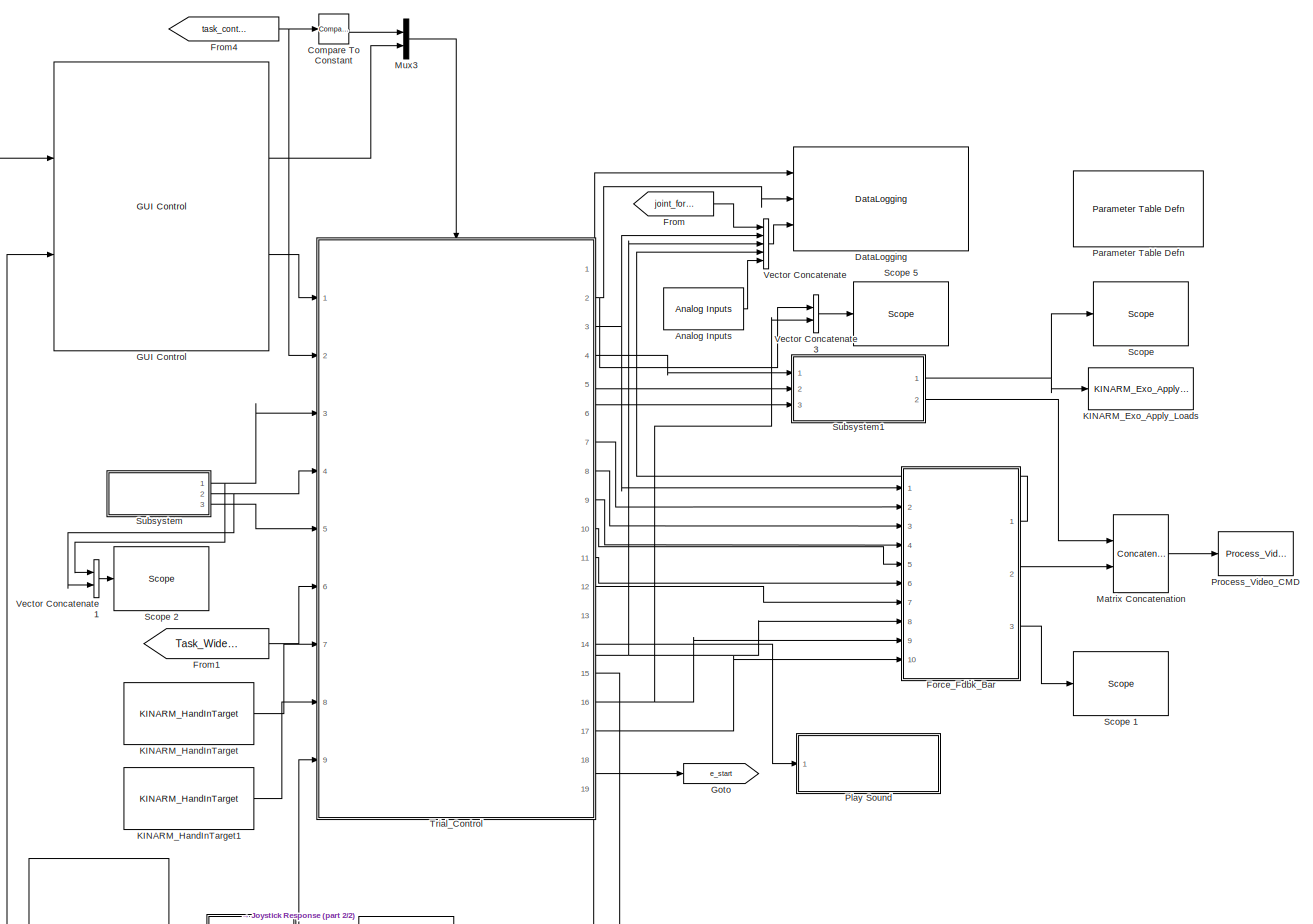
[diagram: root canvas - part 1/2, most of the canvas]
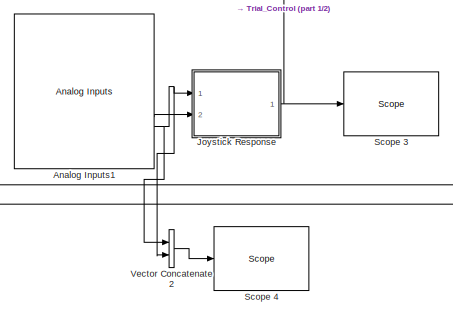
[diagram: root canvas - part 2/2, bottom left region]
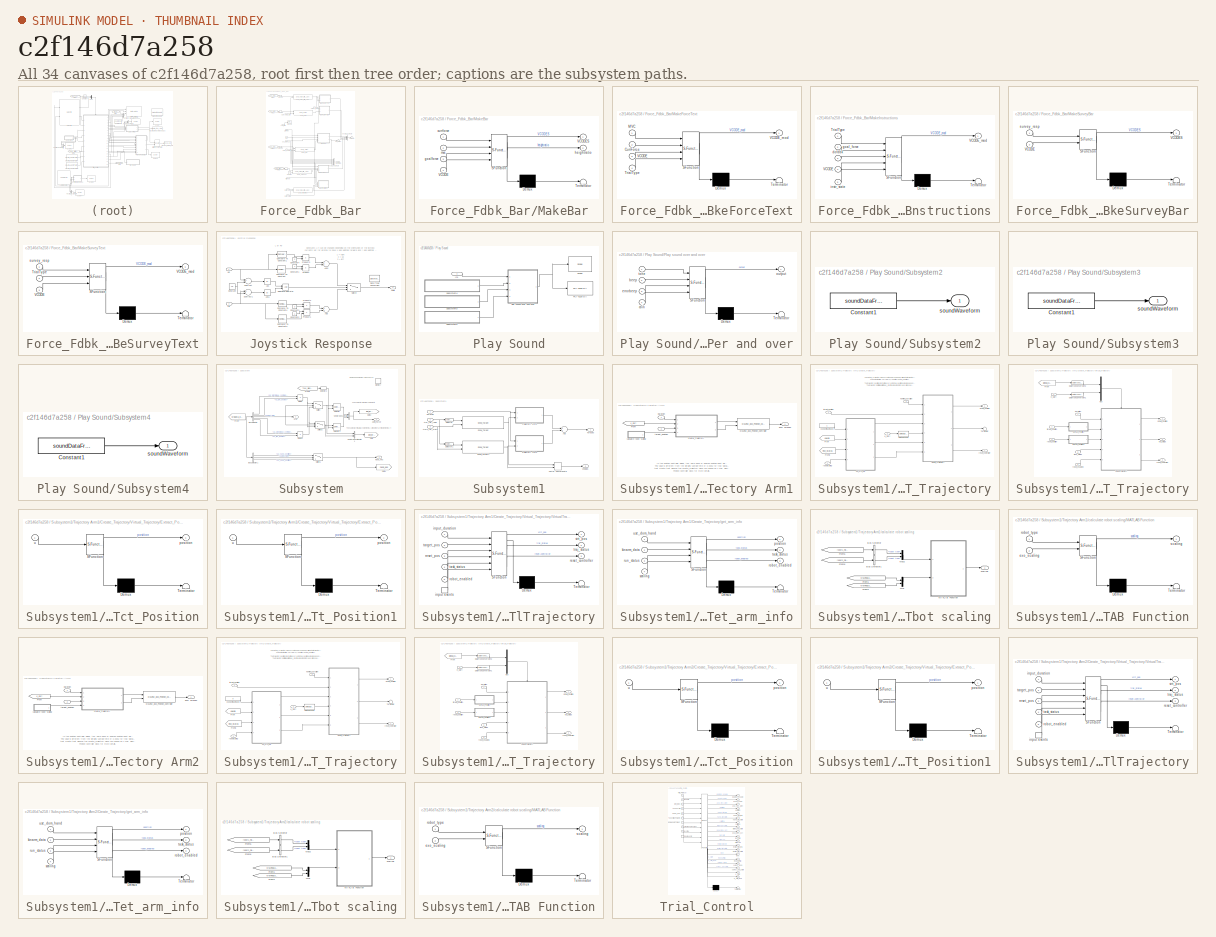
[diagram: thumbnail index - all 34 canvases of the model, root first then tree order]
MODEL slx_c2f146d7a258
KIND model
CONFIG AbsTol = auto
CONFIG FixedStep = BKIN_STEP_TIME
CONFIG MaxStep = auto
CONFIG MinStep = auto
CONFIG RelTol = 1e-3
CONFIG SampleTimeConstraint = Unconstrained
CONFIG Solver = ode4
CONFIG SolverMode = MultiTasking
CONFIG SolverName = ode4
CONFIG StartFcn =  warndlg('Dexterit-E models cannot run under simulation. Please compile your model and run it from within Dexterit-E.');set_param(bdroot,'SimulationCommand','stop')
CONFIG StartTime = 0.0
CONFIG StopTime = inf
WORKSPACE source: MAT-file member
WORKSPACE BKIN_STEP_TIME = 0.00025
WORKSPACE col_x = 1
BLOCK [Reference] Analog Inputs  REF=KINARM_IO/Analog Inputs
  Ports = [0, 1]
  SourceBlock = KINARM_IO/Analog Inputs
  SourceType = Analog Inputs
  channel = [1]
  coupling = [0]
  oscantime6071e = 0
  range = [5]
  sampletime = 0.001
  scantime6071e = 1.28e-5
  scantime6229 = 5e-6
  slot = -1
BLOCK [Reference] Analog Inputs1  REF=KINARM_IO/Analog Inputs
  Ports = [0, 32]
  SourceBlock = KINARM_IO/Analog Inputs
  SourceType = Analog Inputs
  channel = [1:32]
  coupling = [0, 0, 0, 0, 0, 0, 0, 0,0, 0, 0, 0, 0, 0, 0, 0,0, 0, 0, 0, 0, 0, 0, 0,0, 0, 0, 0, 0, 0, 0, 0,]
  oscantime6071e = 0
  range = [5, 5, 5, 5, 5, 5, 5, 5,5, 5, 5, 5, 5, 5, 5, 5,5, 5, 5, 5, 5, 5, 5, 5,5, 5, 5, 5, 5, 5, 5, 5,]
  sampletime = 0.001
  scantime6071e = 1.28e-5
  scantime6229 = 5e-6
  slot = -1
BLOCK [Reference] Compare To Constant  REF=simulink/Logic and Bit
Operations/Compare
To Constant
  OutDataTypeStr = boolean
  Ports = [1, 1]
  SourceBlock = simulink/Logic and Bit\nOperations/Compare\nTo Constant
  SourceType = Compare To Constant
  ZeroCross = on
  const = 1.0
  relop = >
BLOCK [Reference] DataLogging  REF=General/DataLogging
  Ports = [3]
  SourceBlock = General/DataLogging
  SourceType = DataLogging
  ecat_include = on
  log_analog_inputs = on
  log_event_codes = on
  show_time_remaining = off
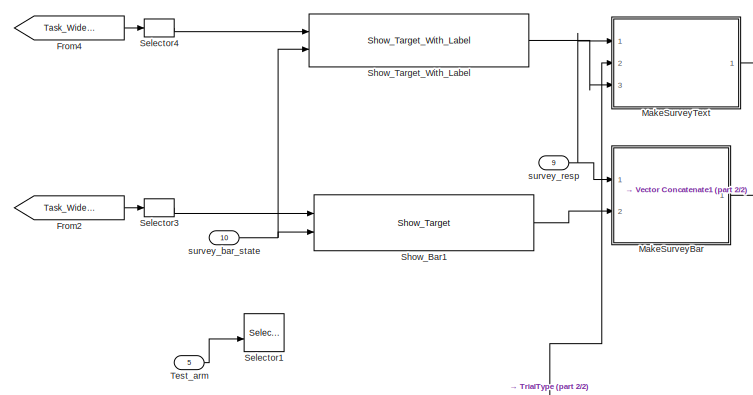
[diagram: Force_Fdbk_Bar - part 1/2, full width, top band]
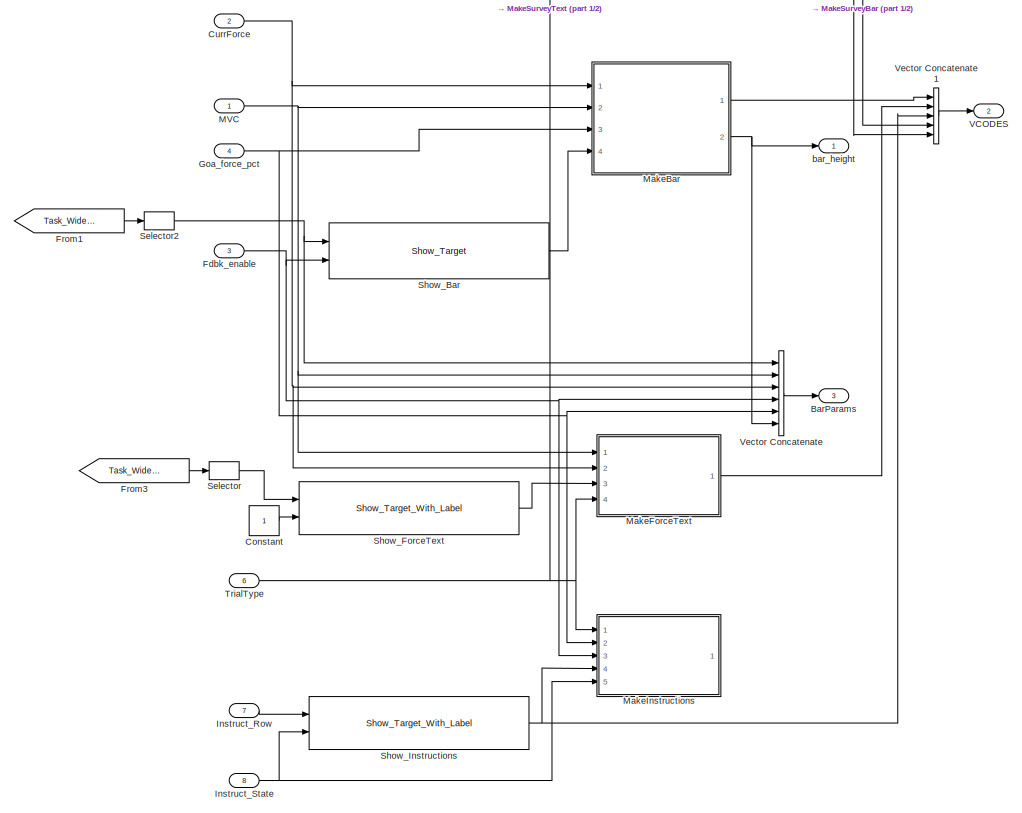
[diagram: Force_Fdbk_Bar - part 2/2, full width, middle band]
BLOCK [SubSystem] Force_Fdbk_Bar
  Ports = [10, 3]
  RequestExecContextInheritance = off
BLOCK [Outport] Force_Fdbk_Bar/BarParams
  IconDisplay = Port number
  Port = 3
BLOCK [Constant] Force_Fdbk_Bar/Constant
BLOCK [Inport] Force_Fdbk_Bar/CurrForce
  IconDisplay = Port number
  Port = 2
BLOCK [Inport] Force_Fdbk_Bar/Fdbk_enable
  IconDisplay = Port number
  Port = 3
BLOCK [From] Force_Fdbk_Bar/From1
  GotoTag = Task_Wide_Parameters
  TagVisibility = global
BLOCK [From] Force_Fdbk_Bar/From2
  GotoTag = Task_Wide_Parameters
  TagVisibility = global
BLOCK [From] Force_Fdbk_Bar/From3
  GotoTag = Task_Wide_Parameters
  TagVisibility = global
BLOCK [From] Force_Fdbk_Bar/From4
  GotoTag = Task_Wide_Parameters
  TagVisibility = global
BLOCK [Inport] Force_Fdbk_Bar/Goa_force_pct
  IconDisplay = Port number
  Port = 4
BLOCK [Inport] Force_Fdbk_Bar/Instruct_Row
  IconDisplay = Port number
  Port = 7
BLOCK [Inport] Force_Fdbk_Bar/Instruct_State
  IconDisplay = Port number
  Port = 8
BLOCK [Inport] Force_Fdbk_Bar/MVC
  IconDisplay = Port number
BLOCK [SubSystem] Force_Fdbk_Bar/MakeBar
  ErrorFcn = Stateflow.Translate.translate
  PermitHierarchicalResolution = ExplicitOnly
  Ports = [4, 2]
  RequestExecContextInheritance = off
  SFBlockType = MATLAB Function
  TreatAsAtomicUnit = on
BLOCK [Demux] Force_Fdbk_Bar/MakeBar/ Demux 
  Outputs = 1
  Ports = [1, 1]
BLOCK [S-Function] Force_Fdbk_Bar/MakeBar/ SFunction 
  EnableBusSupport = on
  FunctionName = sf_sfun
  PortCounts = [4 3]
  Ports = [4, 3]
  Tag = Stateflow S-Function survey_Iso_Force_Matching 5
BLOCK [Terminator] Force_Fdbk_Bar/MakeBar/ Terminator 
BLOCK [Inport] Force_Fdbk_Bar/MakeBar/VCODE
  IconDisplay = Port number
  Port = 4
BLOCK [Outport] Force_Fdbk_Bar/MakeBar/VCODES
  IconDisplay = Port number
BLOCK [Inport] Force_Fdbk_Bar/MakeBar/currforce
  IconDisplay = Port number
BLOCK [Inport] Force_Fdbk_Bar/MakeBar/goalforce
  IconDisplay = Port number
  Port = 3
BLOCK [Outport] Force_Fdbk_Bar/MakeBar/heightratio
  IconDisplay = Port number
  Port = 2
BLOCK [Inport] Force_Fdbk_Bar/MakeBar/mvc
  IconDisplay = Port number
  Port = 2
BLOCK [SubSystem] Force_Fdbk_Bar/MakeForceText
  ErrorFcn = Stateflow.Translate.translate
  PermitHierarchicalResolution = ExplicitOnly
  Ports = [4, 1]
  RequestExecContextInheritance = off
  SFBlockType = MATLAB Function
  TreatAsAtomicUnit = on
BLOCK [Demux] Force_Fdbk_Bar/MakeForceText/ Demux 
  Outputs = 1
  Ports = [1, 1]
BLOCK [S-Function] Force_Fdbk_Bar/MakeForceText/ SFunction 
  EnableBusSupport = on
  FunctionName = sf_sfun
  PortCounts = [4 2]
  Ports = [4, 2]
  Tag = Stateflow S-Function survey_Iso_Force_Matching 6
BLOCK [Terminator] Force_Fdbk_Bar/MakeForceText/ Terminator 
BLOCK [Inport] Force_Fdbk_Bar/MakeForceText/CurrForce
  IconDisplay = Port number
  Port = 2
BLOCK [Inport] Force_Fdbk_Bar/MakeForceText/MVC
  IconDisplay = Port number
BLOCK [Inport] Force_Fdbk_Bar/MakeForceText/TrialType
  IconDisplay = Port number
  Port = 4
BLOCK [Inport] Force_Fdbk_Bar/MakeForceText/VCODE
  IconDisplay = Port number
  Port = 3
BLOCK [Outport] Force_Fdbk_Bar/MakeForceText/VCODE_mod
  IconDisplay = Port number
BLOCK [SubSystem] Force_Fdbk_Bar/MakeInstructions
  Commented = on
  ErrorFcn = Stateflow.Translate.translate
  PermitHierarchicalResolution = ExplicitOnly
  Ports = [5, 1]
  RequestExecContextInheritance = off
  SFBlockType = MATLAB Function
  TreatAsAtomicUnit = on
BLOCK [Demux] Force_Fdbk_Bar/MakeInstructions/ Demux 
  Outputs = 1
  Ports = [1, 1]
BLOCK [S-Function] Force_Fdbk_Bar/MakeInstructions/ SFunction 
  EnableBusSupport = on
  FunctionName = sf_sfun
  PortCounts = [5 2]
  Ports = [5, 2]
  Tag = Stateflow S-Function survey_Iso_Force_Matching 9
BLOCK [Terminator] Force_Fdbk_Bar/MakeInstructions/ Terminator 
BLOCK [Inport] Force_Fdbk_Bar/MakeInstructions/TrialType
  IconDisplay = Port number
BLOCK [Inport] Force_Fdbk_Bar/MakeInstructions/VCODE
  IconDisplay = Port number
  Port = 4
BLOCK [Outport] Force_Fdbk_Bar/MakeInstructions/VCODE_mod
  IconDisplay = Port number
BLOCK [Inport] Force_Fdbk_Bar/MakeInstructions/dofdbk
  IconDisplay = Port number
  Port = 3
BLOCK [Inport] Force_Fdbk_Bar/MakeInstructions/goal_force
  IconDisplay = Port number
  Port = 2
BLOCK [Inport] Force_Fdbk_Bar/MakeInstructions/instr_state
  IconDisplay = Port number
  Port = 5
BLOCK [SubSystem] Force_Fdbk_Bar/MakeSurveyBar
  ErrorFcn = Stateflow.Translate.translate
  PermitHierarchicalResolution = ExplicitOnly
  Ports = [2, 1]
  RequestExecContextInheritance = off
  SFBlockType = MATLAB Function
  TreatAsAtomicUnit = on
BLOCK [Demux] Force_Fdbk_Bar/MakeSurveyBar/ Demux 
  Outputs = 1
  Ports = [1, 1]
BLOCK [S-Function] Force_Fdbk_Bar/MakeSurveyBar/ SFunction 
  EnableBusSupport = on
  FunctionName = sf_sfun
  PortCounts = [2 2]
  Ports = [2, 2]
  Tag = Stateflow S-Function survey_Iso_Force_Matching 16
BLOCK [Terminator] Force_Fdbk_Bar/MakeSurveyBar/ Terminator 
BLOCK [Inport] Force_Fdbk_Bar/MakeSurveyBar/VCODE
  IconDisplay = Port number
  Port = 2
BLOCK [Outport] Force_Fdbk_Bar/MakeSurveyBar/VCODES
  IconDisplay = Port number
BLOCK [Inport] Force_Fdbk_Bar/MakeSurveyBar/survey_resp
  IconDisplay = Port number
BLOCK [SubSystem] Force_Fdbk_Bar/MakeSurveyText
  ErrorFcn = Stateflow.Translate.translate
  PermitHierarchicalResolution = ExplicitOnly
  Ports = [3, 1]
  RequestExecContextInheritance = off
  SFBlockType = MATLAB Function
  TreatAsAtomicUnit = on
BLOCK [Demux] Force_Fdbk_Bar/MakeSurveyText/ Demux 
  Outputs = 1
  Ports = [1, 1]
BLOCK [S-Function] Force_Fdbk_Bar/MakeSurveyText/ SFunction 
  EnableBusSupport = on
  FunctionName = sf_sfun
  PortCounts = [3 2]
  Ports = [3, 2]
  Tag = Stateflow S-Function survey_Iso_Force_Matching 17
BLOCK [Terminator] Force_Fdbk_Bar/MakeSurveyText/ Terminator 
BLOCK [Inport] Force_Fdbk_Bar/MakeSurveyText/TrialType
  IconDisplay = Port number
  Port = 2
BLOCK [Inport] Force_Fdbk_Bar/MakeSurveyText/VCODE
  IconDisplay = Port number
  Port = 3
BLOCK [Outport] Force_Fdbk_Bar/MakeSurveyText/VCODE_mod
  IconDisplay = Port number
BLOCK [Inport] Force_Fdbk_Bar/MakeSurveyText/survey_resp
  IconDisplay = Port number
BLOCK [Selector] Force_Fdbk_Bar/Selector
  Indices = [K_MVC_TEXT_TGT]
  InputPortWidth = 50
  Ports = [1, 1]
BLOCK [Selector] Force_Fdbk_Bar/Selector1
  Commented = on
  IndexOptions = Index vector (port)
  Indices = [1 3]
  InputPortWidth = 2
  Ports = [2, 1]
BLOCK [Selector] Force_Fdbk_Bar/Selector2
  Indices = [K_BAR_TGT]
  InputPortWidth = 50
  Ports = [1, 1]
BLOCK [Selector] Force_Fdbk_Bar/Selector3
  Indices = [K_SUR_TGT]
  InputPortWidth = 50
  Ports = [1, 1]
BLOCK [Selector] Force_Fdbk_Bar/Selector4
  Indices = [K_SUR_TEXT_TGT]
  InputPortWidth = 50
  Ports = [1, 1]
BLOCK [Reference] Force_Fdbk_Bar/Show_Bar  REF=Video/Show_Target
  Ports = [2, 1]
  SourceBlock = Video/Show_Target
  SourceType = Show_Target
  attribcol1 = [COLOR 0 STROKE_WIDTH VRAD HEIGHT 0]
  attribcol2 = [0 0 0 0 0 0]
  attribcol3 = [0 0 0 0 0 0]
  attribcol4 = [0 0 0 0 0 0]
  attribcol5 = [0 0 0 0 0 0]
  num_col = 6
  num_states = 1
  opacity = 100
  source = dialog
  stateindices_padding = [0 0 0 0 0;0 0 0 0 0;0 0 0 0 0;0 0 0 0 0;0 0 0 0 0]
  target_display = Both subject and operator displays
  target_type = Rectangle
BLOCK [Reference] Force_Fdbk_Bar/Show_Bar1  REF=Video/Show_Target
  Ports = [2, 1]
  SourceBlock = Video/Show_Target
  SourceType = Show_Target
  attribcol1 = [COLOR 0 STROKE_WIDTH VRAD HEIGHT 0]
  attribcol2 = [0 0 0 0 0 0]
  attribcol3 = [0 0 0 0 0 0]
  attribcol4 = [0 0 0 0 0 0]
  attribcol5 = [0 0 0 0 0 0]
  num_col = 6
  num_states = 1
  opacity = 100
  source = dialog
  stateindices_padding = [0 0 0 0 0;0 0 0 0 0;0 0 0 0 0;0 0 0 0 0;0 0 0 0 0]
  target_display = Both subject and operator displays
  target_type = Rectangle
BLOCK [Reference] Force_Fdbk_Bar/Show_ForceText  REF=Video/Show_Target_With_Label
  Ports = [2, 1]
  SourceBlock = Video/Show_Target_With_Label
  SourceType = Show_Target_With_Label
  attribcol1 = [0 0 0 VRAD HEIGHT 0 TEXT1 COLOR HEIGHT]
  attribcol2 = [0 0 0 0 0 0 0 0 0]
  attribcol3 = [0 0 0 0 0 0 0 0 0]
  attribcol4 = [0 0 0 0 0 0 0 0 0]
  attribcol5 = [0 0 0 0 0 0 0 0 0]
  num_states = 1
  opacity = 100
  source = dialog
  stateindices_padding = [0 0;0 0;0 0;0 0;0 0]
  target_display = Operator display only
  target_type = Rectangle
BLOCK [Reference] Force_Fdbk_Bar/Show_Instructions  REF=Video/Show_Target_With_Label
  Ports = [2, 1]
  SourceBlock = Video/Show_Target_With_Label
  SourceType = Show_Target_With_Label
  attribcol1 = [0 0 0 VRAD HEIGHT 0 TEXT1 COLOR HEIGHT]
  attribcol2 = [0 0 0 VRAD HEIGHT 0 TEXT2 COLOR HEIGHT]
  attribcol3 = [0 0 0 VRAD HEIGHT 0 TEXT3 COLOR HEIGHT]
  attribcol4 = [0 0 0 VRAD HEIGHT 0 TEXT4 COLOR HEIGHT]
  attribcol5 = [0 0 0 0 0 0 0 0 0]
  num_states = 4
  opacity = 100
  source = dialog
  stateindices_padding = [0 0;0 0;0 0;0 0;0 0]
  target_display = Both subject and operator displays
  target_type = Rectangle
BLOCK [Reference] Force_Fdbk_Bar/Show_Target_With_Label  REF=Video/Show_Target_With_Label
  Ports = [2, 1]
  SourceBlock = Video/Show_Target_With_Label
  SourceType = Show_Target_With_Label
  attribcol1 = [0 0 0 0 TEXT1 COLOR HEIGHT]
  attribcol2 = [0 0 0 0 0 0 0]
  attribcol3 = [0 0 0 0 0 0 0]
  attribcol4 = [0 0 0 0 0 0 0]
  attribcol5 = [0 0 0 0 0 0 0]
  num_states = 1
  opacity = 100
  source = dialog
  stateindices_padding = [0 0 0 0;0 0 0 0;0 0 0 0;0 0 0 0;0 0 0 0]
  target_display = Both subject and operator displays
  target_type = Circle
BLOCK [Inport] Force_Fdbk_Bar/Test_arm
  IconDisplay = Port number
  Port = 5
BLOCK [Inport] Force_Fdbk_Bar/TrialType
  IconDisplay = Port number
  Port = 6
BLOCK [Outport] Force_Fdbk_Bar/VCODES
  IconDisplay = Port number
  Port = 2
BLOCK [Concatenate] Force_Fdbk_Bar/Vector Concatenate
  NumInputs = 6
  Ports = [6, 1]
BLOCK [Concatenate] Force_Fdbk_Bar/Vector Concatenate1
  Mode = Multidimensional array
  NumInputs = 5
  Ports = [5, 1]
BLOCK [Outport] Force_Fdbk_Bar/bar_height
  IconDisplay = Port number
BLOCK [Inport] Force_Fdbk_Bar/survey_bar_state
  IconDisplay = Port number
  Port = 10
BLOCK [Inport] Force_Fdbk_Bar/survey_resp
  IconDisplay = Port number
  Port = 9
BLOCK [From] From
  GotoTag = joint_forces
  TagVisibility = global
BLOCK [From] From1
  GotoTag = Task_Wide_Parameters
  TagVisibility = global
BLOCK [From] From4
  GotoTag = task_control_button
  TagVisibility = global
BLOCK [Reference] GUI Control  REF=General/GUI Control
  Lcols = 4
  Ports = [2, 2]
  SourceBlock = General/GUI Control
  SourceType = GUI Control
  Target_Type = 1
  Vcols = 3
  XYcols = [1 2]
  indices_padding = [0 0 0 0;0 0 0 0]
  load_table_rows = 20
  show_repeat_trial_flag = on
  target_table_rows = 64
  target_type_str = Circle
  task_version = 1.0
  tp_table_rows = 100
  use_custom_tp = off
BLOCK [Goto] Goto
  GotoTag = e_start
  TagVisibility = global
BLOCK [SubSystem] Joystick Response
  Ports = [2, 1]
  RequestExecContextInheritance = off
BLOCK [Abs] Joystick Response/Abs
  SaturateOnIntegerOverflow = off
BLOCK [Abs] Joystick Response/Abs1
  SaturateOnIntegerOverflow = off
BLOCK [Sum] Joystick Response/Add
  InputSameDT = off
  OutDataTypeStr = Inherit: Inherit via internal rule
  Ports = [2, 1]
  SaturateOnIntegerOverflow = off
BLOCK [Sum] Joystick Response/Add1
  InputSameDT = off
  OutDataTypeStr = Inherit: Inherit via internal rule
  Ports = [2, 1]
  SaturateOnIntegerOverflow = off
BLOCK [Reference] Joystick Response/Compare To Constant  REF=simulink/Logic and Bit
Operations/Compare
To Constant
  OutDataTypeStr = boolean
  Ports = [1, 1]
  SourceBlock = simulink/Logic and Bit\nOperations/Compare\nTo Constant
  SourceType = Compare To Constant
  ZeroCross = on
  const = 1
  relop = <=
BLOCK [Reference] Joystick Response/Compare To Constant1  REF=simulink/Logic and Bit
Operations/Compare
To Constant
  OutDataTypeStr = boolean
  Ports = [1, 1]
  SourceBlock = simulink/Logic and Bit\nOperations/Compare\nTo Constant
  SourceType = Compare To Constant
  ZeroCross = on
  const = 4
  relop = >=
BLOCK [Reference] Joystick Response/Compare To Constant3  REF=simulink/Logic and Bit
Operations/Compare
To Constant
  OutDataTypeStr = boolean
  Ports = [1, 1]
  SourceBlock = simulink/Logic and Bit\nOperations/Compare\nTo Constant
  SourceType = Compare To Constant
  ZeroCross = on
  const = 1
  relop = <=
BLOCK [Reference] Joystick Response/Compare To Constant4  REF=simulink/Logic and Bit
Operations/Compare
To Constant
  OutDataTypeStr = boolean
  Ports = [1, 1]
  SourceBlock = simulink/Logic and Bit\nOperations/Compare\nTo Constant
  SourceType = Compare To Constant
  ZeroCross = on
  const = 4
  relop = >=
BLOCK [Constant] Joystick Response/Constant
  Value = 2.5
BLOCK [Constant] Joystick Response/Constant1
  Value = 4
BLOCK [Constant] Joystick Response/Constant2
BLOCK [Constant] Joystick Response/Constant3
  Value = 3
BLOCK [Constant] Joystick Response/Constant4
  Value = 2
BLOCK [DataTypeConversion] Joystick Response/Data Type Conversion
  Commented = on
  OutDataTypeStr = int32
  RndMeth = Floor
  SaturateOnIntegerOverflow = off
BLOCK [Outport] Joystick Response/JSdir
  IconDisplay = Port number
BLOCK [Inport] Joystick Response/LR
  IconDisplay = Port number
  Port = 2
BLOCK [Product] Joystick Response/Product
  InputSameDT = off
  OutDataTypeStr = Inherit: Inherit via internal rule
  Ports = [2, 1]
  RndMeth = Floor
  SaturateOnIntegerOverflow = off
BLOCK [Product] Joystick Response/Product1
  InputSameDT = off
  OutDataTypeStr = Inherit: Inherit via internal rule
  Ports = [2, 1]
  RndMeth = Floor
  SaturateOnIntegerOverflow = off
BLOCK [Product] Joystick Response/Product2
  InputSameDT = off
  OutDataTypeStr = Inherit: Inherit via internal rule
  Ports = [2, 1]
  RndMeth = Floor
  SaturateOnIntegerOverflow = off
BLOCK [Product] Joystick Response/Product3
  InputSameDT = off
  OutDataTypeStr = Inherit: Inherit via internal rule
  Ports = [2, 1]
  RndMeth = Floor
  SaturateOnIntegerOverflow = off
BLOCK [RelationalOperator] Joystick Response/Relational Operator
  InputSameDT = off
  OutDataTypeStr = boolean
  Ports = [2, 1]
BLOCK [Sum] Joystick Response/Subtract
  InputSameDT = off
  Inputs = +-
  OutDataTypeStr = Inherit: Inherit via internal rule
  Ports = [2, 1]
  SaturateOnIntegerOverflow = off
BLOCK [Sum] Joystick Response/Subtract1
  InputSameDT = off
  Inputs = +-
  OutDataTypeStr = Inherit: Inherit via internal rule
  Ports = [2, 1]
  SaturateOnIntegerOverflow = off
BLOCK [Switch] Joystick Response/Switch
  Criteria = u2 > Threshold
  InputSameDT = off
  SaturateOnIntegerOverflow = off
  Threshold = .5
BLOCK [Inport] Joystick Response/UD
  IconDisplay = Port number
BLOCK [Reference] KINARM_Exo_Apply_Loads  REF=KINARM_loads/KINARM_Exo_Apply_Loads
  Ports = [1]
  SourceBlock = KINARM_loads/KINARM_Exo_Apply_Loads
  SourceType = KINARM_Exo_Apply_Loads
  down_duration = 1000
  limit_motors = off
  max_torque = 10
  up_duration = 1000
BLOCK [Reference] KINARM_HandInTarget  REF=KINARM_general/KINARM_HandInTarget
  Ports = [0, 1]
  SourceBlock = KINARM_general/KINARM_HandInTarget
  SourceType = KINARM_HandInTarget
  attribcol1 = [VRAD]
  attribcol2 = [0]
  attribcol3 = [0]
  attribcol4 = [0]
  attribcol5 = [0]
  num_states = 1
  target_type = Circle
  use_dominant_hand = on
BLOCK [Reference] KINARM_HandInTarget1  REF=KINARM_general/KINARM_HandInTarget
  Ports = [0, 1]
  SourceBlock = KINARM_general/KINARM_HandInTarget
  SourceType = KINARM_HandInTarget
  attribcol1 = [VRAD]
  attribcol2 = [0]
  attribcol3 = [0]
  attribcol4 = [0]
  attribcol5 = [0]
  num_states = 1
  target_type = Circle
  use_dominant_hand = off
BLOCK [Concatenate] Matrix Concatenation
  Mode = Multidimensional array
  Ports = [2, 1]
BLOCK [Mux] Mux3
  DisplayOption = bar
  Inputs = 2
  Ports = [2, 1]
BLOCK [Reference] Parameter Table Defn  REF=General/Parameter Table Defn
  Ports = []
  ShowInLibBrowser = 0
  SourceBlock = General/Parameter Table Defn
  UserDataPersistent = on
BLOCK [SubSystem] Play Sound
  Ports = [1]
  RequestExecContextInheritance = off
BLOCK [Inport] Play Sound/In1
  IconDisplay = Signal name
BLOCK [Reference] Play Sound/PCI-6229 DA  REF=xpcnilib/D//A/M Series/PCI-6229 DA
  Ports = [1]
  SourceBlock = xpcnilib/D//A/M Series/PCI-6229 DA
  SourceType = danipci6229
  channel = [1]
  initValue = [0]
  reset = [1]
  sampletime = -1
  slot = -1
BLOCK [SubSystem] Play Sound/Play sound over and over
  ErrorFcn = Stateflow.Translate.translate
  PermitHierarchicalResolution = ExplicitOnly
  Ports = [4, 1]
  RequestExecContextInheritance = off
  SFBlockType = MATLAB Function
  TreatAsAtomicUnit = on
BLOCK [Demux] Play Sound/Play sound over and over/ Demux 
  Outputs = 1
  Ports = [1, 1]
BLOCK [S-Function] Play Sound/Play sound over and over/ SFunction 
  EnableBusSupport = on
  FunctionName = sf_sfun
  PortCounts = [4 2]
  Ports = [4, 2]
  Tag = Stateflow S-Function survey_Iso_Force_Matching 15
BLOCK [Terminator] Play Sound/Play sound over and over/ Terminator 
BLOCK [Inport] Play Sound/Play sound over and over/beep
  IconDisplay = Port number
  Port = 2
BLOCK [Inport] Play Sound/Play sound over and over/coin
  IconDisplay = Port number
  Port = 4
BLOCK [Inport] Play Sound/Play sound over and over/errorbeep
  IconDisplay = Port number
  Port = 3
BLOCK [Outport] Play Sound/Play sound over and over/output
  IconDisplay = Port number
BLOCK [Inport] Play Sound/Play sound over and over/tone
  IconDisplay = Port number
BLOCK [Reference] Play Sound/Scope   REF=slrtlib/Displays and
Logging/Scope 
  Ports = [1]
  SourceBlock = slrtlib/Displays and\nLogging/Scope
  SourceType = xpcscopeblock
  autorestart = off
  autostart = on
  dynamicfilemode = off
  filename = data.dat
  formatstr = '%15.6f'
  grid = on
  interleave = 1
  maxwritefilesize = 512*1024^2
  mode = Lazy
  noprepostsamples = 0
  nosamples = 4000
  scopeno = 5
  scopetype = Target
  triggerlevel = 0.0
  triggermode = FreeRun
  triggersample = 0
  triggerscope = 1
  triggersignal = 1
  triggerslope = Either
  trigsignalfromport = off
  viewmode = Graphical redraw
  writesize = 512
  ylimits = [0,0]
BLOCK [SubSystem] Play Sound/Subsystem2
  Ports = [0, 1]
  RequestExecContextInheritance = off
BLOCK [Constant] Play Sound/Subsystem2/Constant1
  Value = soundDataFromFile
BLOCK [Outport] Play Sound/Subsystem2/soundWaveform
  IconDisplay = Port number
BLOCK [SubSystem] Play Sound/Subsystem3
  Ports = [0, 1]
  RequestExecContextInheritance = off
BLOCK [Constant] Play Sound/Subsystem3/Constant1
  Value = soundDataFromFile
BLOCK [Outport] Play Sound/Subsystem3/soundWaveform
  IconDisplay = Port number
BLOCK [SubSystem] Play Sound/Subsystem4
  Ports = [0, 1]
  RequestExecContextInheritance = off
BLOCK [Constant] Play Sound/Subsystem4/Constant1
  Value = soundDataFromFile
BLOCK [Outport] Play Sound/Subsystem4/soundWaveform
  IconDisplay = Port number
BLOCK [Reference] Process_Video_CMD  REF=Video/Process_Video_CMD
  Ports = [1]
  SourceBlock = Video/Process_Video_CMD
  SourceType = Process_Video_CMD
  video_delay = 0
BLOCK [Reference] Scope   REF=slrtlib/Displays and
Logging/Scope 
  Ports = [1]
  SourceBlock = slrtlib/Displays and\nLogging/Scope
  SourceType = xpcscopeblock
  autorestart = off
  autostart = on
  dynamicfilemode = off
  filename = data.dat
  formatstr = '%15.6f'
  grid = on
  interleave = 1
  maxwritefilesize = 512*1024^2
  mode = Lazy
  noprepostsamples = 0
  nosamples = 250
  scopeno = 1
  scopetype = Target
  triggerlevel = 0.0
  triggermode = FreeRun
  triggersample = 0
  triggerscope = 1
  triggersignal = 1
  triggerslope = Either
  trigsignalfromport = off
  viewmode = Numerical
  writesize = 512
  ylimits = [0,0]
BLOCK [Reference] Scope 1  REF=slrtlib/Displays and
Logging/Scope 
  Ports = [1]
  SourceBlock = slrtlib/Displays and\nLogging/Scope
  SourceType = xpcscopeblock
  autorestart = off
  autostart = on
  dynamicfilemode = off
  filename = data.dat
  formatstr = '%15.6f'
  grid = on
  interleave = 1
  maxwritefilesize = 512*1024^2
  mode = Lazy
  noprepostsamples = 0
  nosamples = 250
  scopeno = 2
  scopetype = Target
  triggerlevel = 0.0
  triggermode = FreeRun
  triggersample = 0
  triggerscope = 1
  triggersignal = 1
  triggerslope = Either
  trigsignalfromport = off
  viewmode = Numerical
  writesize = 512
  ylimits = [0,0]
BLOCK [Reference] Scope 2  REF=slrtlib/Displays and
Logging/Scope 
  Ports = [1]
  SourceBlock = slrtlib/Displays and\nLogging/Scope
  SourceType = xpcscopeblock
  autorestart = off
  autostart = on
  dynamicfilemode = off
  filename = data.dat
  formatstr = '%15.6f'
  grid = on
  interleave = 1
  maxwritefilesize = 512*1024^2
  mode = Lazy
  noprepostsamples = 0
  nosamples = 250
  scopeno = 3
  scopetype = Target
  triggerlevel = 0.0
  triggermode = FreeRun
  triggersample = 0
  triggerscope = 1
  triggersignal = 1
  triggerslope = Either
  trigsignalfromport = off
  viewmode = Numerical
  writesize = 512
  ylimits = [0,0]
BLOCK [Reference] Scope 3  REF=slrtlib/Displays and
Logging/Scope 
  Ports = [1]
  SourceBlock = slrtlib/Displays and\nLogging/Scope
  SourceType = xpcscopeblock
  autorestart = off
  autostart = on
  dynamicfilemode = off
  filename = data.dat
  formatstr = '%15.6f'
  grid = on
  interleave = 1
  maxwritefilesize = 512*1024^2
  mode = Lazy
  noprepostsamples = 0
  nosamples = 250
  scopeno = 4
  scopetype = Target
  triggerlevel = 0.0
  triggermode = FreeRun
  triggersample = 0
  triggerscope = 1
  triggersignal = 1
  triggerslope = Either
  trigsignalfromport = off
  viewmode = Numerical
  writesize = 512
  ylimits = [0,0]
BLOCK [Reference] Scope 4  REF=slrtlib/Displays and
Logging/Scope 
  Ports = [1]
  SourceBlock = slrtlib/Displays and\nLogging/Scope
  SourceType = xpcscopeblock
  autorestart = off
  autostart = on
  dynamicfilemode = off
  filename = data.dat
  formatstr = '%15.6f'
  grid = on
  interleave = 1
  maxwritefilesize = 512*1024^2
  mode = Lazy
  noprepostsamples = 0
  nosamples = 250
  scopeno = 6
  scopetype = Target
  triggerlevel = 0.0
  triggermode = FreeRun
  triggersample = 0
  triggerscope = 1
  triggersignal = 1
  triggerslope = Either
  trigsignalfromport = off
  viewmode = Numerical
  writesize = 512
  ylimits = [0,0]
BLOCK [Reference] Scope 5  REF=slrtlib/Displays and
Logging/Scope 
  Ports = [1]
  SourceBlock = slrtlib/Displays and\nLogging/Scope
  SourceType = xpcscopeblock
  autorestart = off
  autostart = on
  dynamicfilemode = off
  filename = data.dat
  formatstr = '%15.6f'
  grid = on
  interleave = 1
  maxwritefilesize = 512*1024^2
  mode = Lazy
  noprepostsamples = 0
  nosamples = 250
  scopeno = 7
  scopetype = Target
  triggerlevel = 0.0
  triggermode = FreeRun
  triggersample = 0
  triggerscope = 1
  triggersignal = 1
  triggerslope = Either
  trigsignalfromport = off
  viewmode = Numerical
  writesize = 512
  ylimits = [0,0]
BLOCK [SubSystem] Subsystem
  Ports = [0, 3]
  RequestExecContextInheritance = off
BLOCK [Outport] Subsystem/Arm
  IconDisplay = Port number
  Port = 2
BLOCK [BusSelector] Subsystem/Bus Selector
  OutputSignals = Robot2.a2_joint_torque_command,Robot2.a2_link_lengths,KINDataGeneral.subject_arm,Robot1.a1_joint_torque_command,Robot1.a1_link_lengths
  Ports = [1, 5]
BLOCK [BusSelector] Subsystem/Bus Selector1
  OutputSignals = Robot2.a2_hand_position,KINDataGeneral.subject_arm,Robot1.a1_hand_position
  Ports = [1, 3]
BLOCK [Product] Subsystem/Divide
  InputSameDT = off
  Inputs = */
  OutDataTypeStr = Inherit: Inherit via internal rule
  Ports = [2, 1]
  RndMeth = Floor
  SaturateOnIntegerOverflow = off
BLOCK [Product] Subsystem/Divide1
  InputSameDT = off
  Inputs = */
  OutDataTypeStr = Inherit: Inherit via internal rule
  Ports = [2, 1]
  RndMeth = Floor
  SaturateOnIntegerOverflow = off
BLOCK [From] Subsystem/From
  GotoTag = KINdata_bus
  TagVisibility = global
BLOCK [From] Subsystem/From1
  GotoTag = Task_Wide_Parameters
  TagVisibility = global
BLOCK [Goto] Subsystem/Goto
  GotoTag = joint_forces
  TagVisibility = global
BLOCK [Goto] Subsystem/Goto1
  GotoTag = hand_pos
  TagVisibility = global
BLOCK [Goto] Subsystem/Goto2
  GotoTag = joint_force_selected
  TagVisibility = global
BLOCK [Outport] Subsystem/Hand_Pos
  IconDisplay = Port number
  Port = 3
BLOCK [Outport] Subsystem/Joint_Force
  IconDisplay = Port number
BLOCK [Memory] Subsystem/Memory
  Commented = on
BLOCK [Selector] Subsystem/Selector
  IndexOptions = Index vector (port)
  Indices = [1 3]
  InputPortWidth = 2
  Ports = [2, 1]
BLOCK [Selector] Subsystem/Selector1
  IndexOptions = Index vector (port)
  Indices = [1 3]
  InputPortWidth = 2
  Ports = [2, 1]
BLOCK [Selector] Subsystem/Selector2
  Indices = [K_JOINT_ASSESSED]
  InputPortWidth = 50
  Ports = [1, 1]
BLOCK [Switch] Subsystem/Switch
  InputSameDT = off
  SaturateOnIntegerOverflow = off
  Threshold = 2
BLOCK [Switch] Subsystem/Switch1
  InputSameDT = off
  SaturateOnIntegerOverflow = off
  Threshold = 2
BLOCK [Switch] Subsystem/Switch2
  InputSameDT = off
  SaturateOnIntegerOverflow = off
  Threshold = 2
BLOCK [Concatenate] Subsystem/Vector Concatenate
  Ports = [2, 1]
BLOCK [Concatenate] Subsystem/Vector Concatenate1
  Ports = [2, 1]
BLOCK [SubSystem] Subsystem1
  Ports = [3, 2]
  RequestExecContextInheritance = off
BLOCK [Sum] Subsystem1/Add
  InputSameDT = off
  OutDataTypeStr = Inherit: Inherit via internal rule
  Ports = [2, 1]
  SaturateOnIntegerOverflow = off
BLOCK [Inport] Subsystem1/Arm_tgt_rows
  IconDisplay = Port number
  Port = 2
BLOCK [Inport] Subsystem1/Arms_tgt_state
  IconDisplay = Port number
  Port = 3
BLOCK [Selector] Subsystem1/Selector
  Indices = [1]
  InputPortWidth = 2
  Ports = [1, 1]
BLOCK [Selector] Subsystem1/Selector1
  Indices = [2]
  InputPortWidth = 2
  Ports = [1, 1]
BLOCK [Reference] Subsystem1/Show_Target  REF=Video/Show_Target
  Ports = [2, 1]
  SourceBlock = Video/Show_Target
  SourceType = Show_Target
  attribcol1 = [COLOR 0 0 VRAD]
  attribcol2 = [0 0 0 0]
  attribcol3 = [0 0 0 0]
  attribcol4 = [0 0 0 0]
  attribcol5 = [0 0 0 0]
  num_col = 4
  num_states = 1
  opacity = 100
  source = dialog
  stateindices_padding = [0 0 0 0 0 0 0;0 0 0 0 0 0 0;0 0 0 0 0 0 0;0 0 0 0 0 0 0;0 0 0 0 0 0 0]
  target_display = Both subject and operator displays
  target_type = Circle
BLOCK [Reference] Subsystem1/Show_Target1  REF=Video/Show_Target
  Ports = [2, 1]
  SourceBlock = Video/Show_Target
  SourceType = Show_Target
  attribcol1 = [COLOR 0 0 VRAD]
  attribcol2 = [0 0 0 0]
  attribcol3 = [0 0 0 0]
  attribcol4 = [0 0 0 0]
  attribcol5 = [0 0 0 0]
  num_col = 4
  num_states = 1
  opacity = 100
  source = dialog
  stateindices_padding = [0 0 0 0 0 0 0;0 0 0 0 0 0 0;0 0 0 0 0 0 0;0 0 0 0 0 0 0;0 0 0 0 0 0 0]
  target_display = Both subject and operator displays
  target_type = Circle
BLOCK [Outport] Subsystem1/Torques
  IconDisplay = Port number
BLOCK [SubSystem] Subsystem1/Trajectory Arm1
  Ports = [2, 1]
  RequestExecContextInheritance = off
BLOCK [SubSystem] Subsystem1/Trajectory Arm1/Create_Trajectory
  Ports = [4, 2]
  RequestExecContextInheritance = off
BLOCK [Reference] Subsystem1/Trajectory Arm1/Create_Trajectory/Detect Change  REF=simulink/Logic and Bit
Operations/Detect
Change
  InputProcessing = Inherited
  OutDataTypeStr = uint8
  Ports = [1, 1]
  SourceBlock = simulink/Logic and Bit\nOperations/Detect\nChange
  SourceType = Detect Change
  vinit = 0
BLOCK [From] Subsystem1/Trajectory Arm1/Create_Trajectory/From
  CloseFcn = tagdialog Close
  GotoTag = KINdata
  TagVisibility = global
BLOCK [From] Subsystem1/Trajectory Arm1/Create_Trajectory/From3
  CloseFcn = tagdialog Close
  GotoTag = Run_Status
  TagVisibility = global
BLOCK [Terminator] Subsystem1/Trajectory Arm1/Create_Trajectory/Terminator
BLOCK [SubSystem] Subsystem1/Trajectory Arm1/Create_Trajectory/Virtual_Trajectory
  Ports = [6, 3]
  RequestExecContextInheritance = off
BLOCK [DataTypeConversion] Subsystem1/Trajectory Arm1/Create_Trajectory/Virtual_Trajectory/Data Type Conversion1
  RndMeth = Floor
  SaturateOnIntegerOverflow = off
BLOCK [DataTypeConversion] Subsystem1/Trajectory Arm1/Create_Trajectory/Virtual_Trajectory/Data Type Conversion2
  RndMeth = Floor
  SaturateOnIntegerOverflow = off
BLOCK [SubSystem] Subsystem1/Trajectory Arm1/Create_Trajectory/Virtual_Trajectory/Extract_Position
  ErrorFcn = Stateflow.Translate.translate
  PermitHierarchicalResolution = ExplicitOnly
  Ports = [1, 1]
  RequestExecContextInheritance = off
  SFBlockType = MATLAB Function
  TreatAsAtomicUnit = on
BLOCK [Demux] Subsystem1/Trajectory Arm1/Create_Trajectory/Virtual_Trajectory/Extract_Position/ Demux 
  Outputs = 1
  Ports = [1, 1]
BLOCK [S-Function] Subsystem1/Trajectory Arm1/Create_Trajectory/Virtual_Trajectory/Extract_Position/ SFunction 
  EnableBusSupport = on
  FunctionName = sf_sfun
  PortCounts = [1 2]
  Ports = [1, 2]
  Tag = Stateflow S-Function survey_Iso_Force_Matching 3
BLOCK [Terminator] Subsystem1/Trajectory Arm1/Create_Trajectory/Virtual_Trajectory/Extract_Position/ Terminator 
BLOCK [Outport] Subsystem1/Trajectory Arm1/Create_Trajectory/Virtual_Trajectory/Extract_Position/position
  IconDisplay = Port number
BLOCK [Inport] Subsystem1/Trajectory Arm1/Create_Trajectory/Virtual_Trajectory/Extract_Position/u
  IconDisplay = Port number
BLOCK [SubSystem] Subsystem1/Trajectory Arm1/Create_Trajectory/Virtual_Trajectory/Extract_Position1
  ErrorFcn = Stateflow.Translate.translate
  PermitHierarchicalResolution = ExplicitOnly
  Ports = [1, 1]
  RequestExecContextInheritance = off
  SFBlockType = MATLAB Function
  TreatAsAtomicUnit = on
BLOCK [Demux] Subsystem1/Trajectory Arm1/Create_Trajectory/Virtual_Trajectory/Extract_Position1/ Demux 
  Outputs = 1
  Ports = [1, 1]
BLOCK [S-Function] Subsystem1/Trajectory Arm1/Create_Trajectory/Virtual_Trajectory/Extract_Position1/ SFunction 
  EnableBusSupport = on
  FunctionName = sf_sfun
  PortCounts = [1 2]
  Ports = [1, 2]
  Tag = Stateflow S-Function survey_Iso_Force_Matching 4
BLOCK [Terminator] Subsystem1/Trajectory Arm1/Create_Trajectory/Virtual_Trajectory/Extract_Position1/ Terminator 
BLOCK [Outport] Subsystem1/Trajectory Arm1/Create_Trajectory/Virtual_Trajectory/Extract_Position1/position
  IconDisplay = Port number
BLOCK [Inport] Subsystem1/Trajectory Arm1/Create_Trajectory/Virtual_Trajectory/Extract_Position1/u
  IconDisplay = Port number
BLOCK [From] Subsystem1/Trajectory Arm1/Create_Trajectory/Virtual_Trajectory/From
  CloseFcn = tagdialog Close
  GotoTag = global_clock
  TagVisibility = global
BLOCK [Mux] Subsystem1/Trajectory Arm1/Create_Trajectory/Virtual_Trajectory/Mux
  DisplayOption = bar
  Inputs = 2
  Ports = [2, 1]
BLOCK [SubSystem] Subsystem1/Trajectory Arm1/Create_Trajectory/Virtual_Trajectory/VirtualTrajectory
  ErrorFcn = Stateflow.Translate.translate
  PermitHierarchicalResolution = ExplicitOnly
  Ports = [5, 3, 0, 1]
  RequestExecContextInheritance = off
  SFBlockType = Chart
  TreatAsAtomicUnit = on
BLOCK [Demux] Subsystem1/Trajectory Arm1/Create_Trajectory/Virtual_Trajectory/VirtualTrajectory/ Demux 
  Outputs = 1
  Ports = [1, 1]
BLOCK [S-Function] Subsystem1/Trajectory Arm1/Create_Trajectory/Virtual_Trajectory/VirtualTrajectory/ SFunction 
  EnableBusSupport = on
  FunctionName = sf_sfun
  PortCounts = [6 4]
  Ports = [6, 4]
  Tag = Stateflow S-Function survey_Iso_Force_Matching 7
BLOCK [Terminator] Subsystem1/Trajectory Arm1/Create_Trajectory/Virtual_Trajectory/VirtualTrajectory/ Terminator 
BLOCK [TriggerPort] Subsystem1/Trajectory Arm1/Create_Trajectory/Virtual_Trajectory/VirtualTrajectory/ input events 
  Ports = [0, 1]
  ShowOutputPort = on
BLOCK [Inport] Subsystem1/Trajectory Arm1/Create_Trajectory/Virtual_Trajectory/VirtualTrajectory/input_duration
  IconDisplay = Port number
BLOCK [Outport] Subsystem1/Trajectory Arm1/Create_Trajectory/Virtual_Trajectory/VirtualTrajectory/reset_controller
  IconDisplay = Port number
  Port = 3
BLOCK [Inport] Subsystem1/Trajectory Arm1/Create_Trajectory/Virtual_Trajectory/VirtualTrajectory/reset_pos
  IconDisplay = Port number
  Port = 3
BLOCK [Inport] Subsystem1/Trajectory Arm1/Create_Trajectory/Virtual_Trajectory/VirtualTrajectory/robot_enabled
  IconDisplay = Port number
  Port = 5
BLOCK [Inport] Subsystem1/Trajectory Arm1/Create_Trajectory/Virtual_Trajectory/VirtualTrajectory/target_pos
  IconDisplay = Port number
  Port = 2
BLOCK [Inport] Subsystem1/Trajectory Arm1/Create_Trajectory/Virtual_Trajectory/VirtualTrajectory/task_status
  IconDisplay = Port number
  Port = 4
BLOCK [Outport] Subsystem1/Trajectory Arm1/Create_Trajectory/Virtual_Trajectory/VirtualTrajectory/traj_status
  IconDisplay = Port number
  Port = 2
BLOCK [Outport] Subsystem1/Trajectory Arm1/Create_Trajectory/Virtual_Trajectory/VirtualTrajectory/virt_pos
  IconDisplay = Port number
BLOCK [Inport] Subsystem1/Trajectory Arm1/Create_Trajectory/Virtual_Trajectory/duration
  IconDisplay = Port number
BLOCK [Inport] Subsystem1/Trajectory Arm1/Create_Trajectory/Virtual_Trajectory/e_start
  IconDisplay = Port number
  Port = 4
BLOCK [Outport] Subsystem1/Trajectory Arm1/Create_Trajectory/Virtual_Trajectory/reset_controller
  IconDisplay = Port number
  Port = 3
BLOCK [Inport] Subsystem1/Trajectory Arm1/Create_Trajectory/Virtual_Trajectory/reset_position
  IconDisplay = Port number
  Port = 3
BLOCK [Inport] Subsystem1/Trajectory Arm1/Create_Trajectory/Virtual_Trajectory/robot_enabled
  IconDisplay = Port number
  Port = 6
BLOCK [Inport] Subsystem1/Trajectory Arm1/Create_Trajectory/Virtual_Trajectory/target_position
  IconDisplay = Port number
  Port = 2
BLOCK [Inport] Subsystem1/Trajectory Arm1/Create_Trajectory/Virtual_Trajectory/task_status
  IconDisplay = Port number
  Port = 5
BLOCK [Outport] Subsystem1/Trajectory Arm1/Create_Trajectory/Virtual_Trajectory/traj_status
  IconDisplay = Port number
  Port = 2
BLOCK [Outport] Subsystem1/Trajectory Arm1/Create_Trajectory/Virtual_Trajectory/virtual_position
  IconDisplay = Port number
BLOCK [Inport] Subsystem1/Trajectory Arm1/Create_Trajectory/e_start
  IconDisplay = Port number
  Port = 2
BLOCK [SubSystem] Subsystem1/Trajectory Arm1/Create_Trajectory/get_arm_info
  ErrorFcn = Stateflow.Translate.translate
  PermitHierarchicalResolution = ExplicitOnly
  Ports = [4, 3]
  RequestExecContextInheritance = off
  SFBlockType = MATLAB Function
  TreatAsAtomicUnit = on
BLOCK [Demux] Subsystem1/Trajectory Arm1/Create_Trajectory/get_arm_info/ Demux 
  Outputs = 1
  Ports = [1, 1]
BLOCK [S-Function] Subsystem1/Trajectory Arm1/Create_Trajectory/get_arm_info/ SFunction 
  EnableBusSupport = on
  FunctionName = sf_sfun
  PortCounts = [4 4]
  Ports = [4, 4]
  Tag = Stateflow S-Function survey_Iso_Force_Matching 8
BLOCK [Terminator] Subsystem1/Trajectory Arm1/Create_Trajectory/get_arm_info/ Terminator 
BLOCK [Inport] Subsystem1/Trajectory Arm1/Create_Trajectory/get_arm_info/kinarm_data
  IconDisplay = Port number
  Port = 2
BLOCK [Outport] Subsystem1/Trajectory Arm1/Create_Trajectory/get_arm_info/position
  IconDisplay = Port number
BLOCK [Outport] Subsystem1/Trajectory Arm1/Create_Trajectory/get_arm_info/robot_enabled
  IconDisplay = Port number
  Port = 3
BLOCK [Inport] Subsystem1/Trajectory Arm1/Create_Trajectory/get_arm_info/run_status
  IconDisplay = Port number
  Port = 3
BLOCK [Inport] Subsystem1/Trajectory Arm1/Create_Trajectory/get_arm_info/scaling
  IconDisplay = Port number
  Port = 4
BLOCK [Outport] Subsystem1/Trajectory Arm1/Create_Trajectory/get_arm_info/task_status
  IconDisplay = Port number
  Port = 2
BLOCK [Inport] Subsystem1/Trajectory Arm1/Create_Trajectory/get_arm_info/use_dom_hand
  IconDisplay = Port number
BLOCK [Inport] Subsystem1/Trajectory Arm1/Create_Trajectory/nominal_duration
  IconDisplay = Port number
BLOCK [Outport] Subsystem1/Trajectory Arm1/Create_Trajectory/reset_controller
  IconDisplay = Port number
  Port = 2
BLOCK [Inport] Subsystem1/Trajectory Arm1/Create_Trajectory/robot scaling
  IconDisplay = Port number
  Port = 4
BLOCK [Inport] Subsystem1/Trajectory Arm1/Create_Trajectory/target_position
  IconDisplay = Port number
  Port = 3
BLOCK [Constant] Subsystem1/Trajectory Arm1/Create_Trajectory/use dominant hand
BLOCK [Outport] Subsystem1/Trajectory Arm1/Create_Trajectory/virtual_position
  IconDisplay = Port number
BLOCK [Inport] Subsystem1/Trajectory Arm1/Duration
  IconDisplay = Port number
BLOCK [Outport] Subsystem1/Trajectory Arm1/EXO Torques
  IconDisplay = Port number
BLOCK [From] Subsystem1/Trajectory Arm1/From
  GotoTag = e_start
  TagVisibility = global
BLOCK [Reference] Subsystem1/Trajectory Arm1/KINARM_Exo_Position_Controller  REF=KINARM_loads/KINARM_Exo_Position_Controller
  KINARM_Type = Human
  Ports = [2, 1]
  SourceBlock = KINARM_loads/KINARM_Exo_Position_Controller
  SourceType = KINARM_Exo_Position_Controller
  angles_or_XY = End-point (global x/y)
  inertias_for_FF = KINARM robot & arm troughs
  sample_time = 0.001
  use_dom_hand = on
BLOCK [SubSystem] Subsystem1/Trajectory Arm1/calculate robot scaling
  Ports = [0, 1]
  RequestExecContextInheritance = off
BLOCK [BusSelector] Subsystem1/Trajectory Arm1/calculate robot scaling/Bus Selector
  OutputSignals = robot type
  Ports = [1, 1]
BLOCK [BusSelector] Subsystem1/Trajectory Arm1/calculate robot scaling/Bus Selector1
  OutputSignals = robot type
  Ports = [1, 1]
BLOCK [From] Subsystem1/Trajectory Arm1/calculate robot scaling/From1
  CloseFcn = tagdialog Close
  GotoTag = KINARMScalingRobot1
  TagVisibility = global
BLOCK [From] Subsystem1/Trajectory Arm1/calculate robot scaling/From2
  CloseFcn = tagdialog Close
  GotoTag = KINARMScalingRobot2
  TagVisibility = global
BLOCK [From] Subsystem1/Trajectory Arm1/calculate robot scaling/From5
  CloseFcn = tagdialog Close
  GotoTag = robot1_motor_parameters
  TagVisibility = global
BLOCK [From] Subsystem1/Trajectory Arm1/calculate robot scaling/From6
  CloseFcn = tagdialog Close
  GotoTag = robot2_motor_parameters
  TagVisibility = global
BLOCK [SubSystem] Subsystem1/Trajectory Arm1/calculate robot scaling/MATLAB Function
  ErrorFcn = Stateflow.Translate.translate
  PermitHierarchicalResolution = ExplicitOnly
  Ports = [2, 1]
  RequestExecContextInheritance = off
  SFBlockType = MATLAB Function
  TreatAsAtomicUnit = on
BLOCK [Demux] Subsystem1/Trajectory Arm1/calculate robot scaling/MATLAB Function/ Demux 
  Outputs = 1
  Ports = [1, 1]
BLOCK [S-Function] Subsystem1/Trajectory Arm1/calculate robot scaling/MATLAB Function/ SFunction 
  EnableBusSupport = on
  FunctionName = sf_sfun
  PortCounts = [2 2]
  Ports = [2, 2]
  Tag = Stateflow S-Function survey_Iso_Force_Matching 2
BLOCK [Terminator] Subsystem1/Trajectory Arm1/calculate robot scaling/MATLAB Function/ Terminator 
BLOCK [Inport] Subsystem1/Trajectory Arm1/calculate robot scaling/MATLAB Function/exo_scaling
  IconDisplay = Port number
  Port = 2
BLOCK [Inport] Subsystem1/Trajectory Arm1/calculate robot scaling/MATLAB Function/robot_type
  IconDisplay = Port number
BLOCK [Outport] Subsystem1/Trajectory Arm1/calculate robot scaling/MATLAB Function/scaling
  IconDisplay = Port number
BLOCK [Mux] Subsystem1/Trajectory Arm1/calculate robot scaling/Mux
  DisplayOption = bar
  Inputs = 2
  Ports = [2, 1]
BLOCK [Mux] Subsystem1/Trajectory Arm1/calculate robot scaling/Mux2
  DisplayOption = bar
  Inputs = 2
  Ports = [2, 1]
BLOCK [Outport] Subsystem1/Trajectory Arm1/calculate robot scaling/scaling
  IconDisplay = Port number
BLOCK [Inport] Subsystem1/Trajectory Arm1/target_position
  IconDisplay = Port number
  Port = 2
BLOCK [SubSystem] Subsystem1/Trajectory Arm2
  Ports = [2, 1]
  RequestExecContextInheritance = off
BLOCK [SubSystem] Subsystem1/Trajectory Arm2/Create_Trajectory
  Ports = [4, 2]
  RequestExecContextInheritance = off
BLOCK [Reference] Subsystem1/Trajectory Arm2/Create_Trajectory/Detect Change  REF=simulink/Logic and Bit
Operations/Detect
Change
  InputProcessing = Inherited
  OutDataTypeStr = uint8
  Ports = [1, 1]
  SourceBlock = simulink/Logic and Bit\nOperations/Detect\nChange
  SourceType = Detect Change
  vinit = 0
BLOCK [From] Subsystem1/Trajectory Arm2/Create_Trajectory/From
  CloseFcn = tagdialog Close
  GotoTag = KINdata
  TagVisibility = global
BLOCK [From] Subsystem1/Trajectory Arm2/Create_Trajectory/From3
  CloseFcn = tagdialog Close
  GotoTag = Run_Status
  TagVisibility = global
BLOCK [Terminator] Subsystem1/Trajectory Arm2/Create_Trajectory/Terminator
BLOCK [SubSystem] Subsystem1/Trajectory Arm2/Create_Trajectory/Virtual_Trajectory
  Ports = [6, 3]
  RequestExecContextInheritance = off
BLOCK [DataTypeConversion] Subsystem1/Trajectory Arm2/Create_Trajectory/Virtual_Trajectory/Data Type Conversion1
  RndMeth = Floor
  SaturateOnIntegerOverflow = off
BLOCK [DataTypeConversion] Subsystem1/Trajectory Arm2/Create_Trajectory/Virtual_Trajectory/Data Type Conversion2
  RndMeth = Floor
  SaturateOnIntegerOverflow = off
BLOCK [SubSystem] Subsystem1/Trajectory Arm2/Create_Trajectory/Virtual_Trajectory/Extract_Position
  ErrorFcn = Stateflow.Translate.translate
  PermitHierarchicalResolution = ExplicitOnly
  Ports = [1, 1]
  RequestExecContextInheritance = off
  SFBlockType = MATLAB Function
  TreatAsAtomicUnit = on
BLOCK [Demux] Subsystem1/Trajectory Arm2/Create_Trajectory/Virtual_Trajectory/Extract_Position/ Demux 
  Outputs = 1
  Ports = [1, 1]
BLOCK [S-Function] Subsystem1/Trajectory Arm2/Create_Trajectory/Virtual_Trajectory/Extract_Position/ SFunction 
  EnableBusSupport = on
  FunctionName = sf_sfun
  PortCounts = [1 2]
  Ports = [1, 2]
  Tag = Stateflow S-Function survey_Iso_Force_Matching 10
BLOCK [Terminator] Subsystem1/Trajectory Arm2/Create_Trajectory/Virtual_Trajectory/Extract_Position/ Terminator 
BLOCK [Outport] Subsystem1/Trajectory Arm2/Create_Trajectory/Virtual_Trajectory/Extract_Position/position
  IconDisplay = Port number
BLOCK [Inport] Subsystem1/Trajectory Arm2/Create_Trajectory/Virtual_Trajectory/Extract_Position/u
  IconDisplay = Port number
BLOCK [SubSystem] Subsystem1/Trajectory Arm2/Create_Trajectory/Virtual_Trajectory/Extract_Position1
  ErrorFcn = Stateflow.Translate.translate
  PermitHierarchicalResolution = ExplicitOnly
  Ports = [1, 1]
  RequestExecContextInheritance = off
  SFBlockType = MATLAB Function
  TreatAsAtomicUnit = on
BLOCK [Demux] Subsystem1/Trajectory Arm2/Create_Trajectory/Virtual_Trajectory/Extract_Position1/ Demux 
  Outputs = 1
  Ports = [1, 1]
BLOCK [S-Function] Subsystem1/Trajectory Arm2/Create_Trajectory/Virtual_Trajectory/Extract_Position1/ SFunction 
  EnableBusSupport = on
  FunctionName = sf_sfun
  PortCounts = [1 2]
  Ports = [1, 2]
  Tag = Stateflow S-Function survey_Iso_Force_Matching 11
BLOCK [Terminator] Subsystem1/Trajectory Arm2/Create_Trajectory/Virtual_Trajectory/Extract_Position1/ Terminator 
BLOCK [Outport] Subsystem1/Trajectory Arm2/Create_Trajectory/Virtual_Trajectory/Extract_Position1/position
  IconDisplay = Port number
BLOCK [Inport] Subsystem1/Trajectory Arm2/Create_Trajectory/Virtual_Trajectory/Extract_Position1/u
  IconDisplay = Port number
BLOCK [From] Subsystem1/Trajectory Arm2/Create_Trajectory/Virtual_Trajectory/From
  CloseFcn = tagdialog Close
  GotoTag = global_clock
  TagVisibility = global
BLOCK [Mux] Subsystem1/Trajectory Arm2/Create_Trajectory/Virtual_Trajectory/Mux
  DisplayOption = bar
  Inputs = 2
  Ports = [2, 1]
BLOCK [SubSystem] Subsystem1/Trajectory Arm2/Create_Trajectory/Virtual_Trajectory/VirtualTrajectory
  ErrorFcn = Stateflow.Translate.translate
  PermitHierarchicalResolution = ExplicitOnly
  Ports = [5, 3, 0, 1]
  RequestExecContextInheritance = off
  SFBlockType = Chart
  TreatAsAtomicUnit = on
BLOCK [Demux] Subsystem1/Trajectory Arm2/Create_Trajectory/Virtual_Trajectory/VirtualTrajectory/ Demux 
  Outputs = 1
  Ports = [1, 1]
BLOCK [S-Function] Subsystem1/Trajectory Arm2/Create_Trajectory/Virtual_Trajectory/VirtualTrajectory/ SFunction 
  EnableBusSupport = on
  FunctionName = sf_sfun
  PortCounts = [6 4]
  Ports = [6, 4]
  Tag = Stateflow S-Function survey_Iso_Force_Matching 12
BLOCK [Terminator] Subsystem1/Trajectory Arm2/Create_Trajectory/Virtual_Trajectory/VirtualTrajectory/ Terminator 
BLOCK [TriggerPort] Subsystem1/Trajectory Arm2/Create_Trajectory/Virtual_Trajectory/VirtualTrajectory/ input events 
  Ports = [0, 1]
  ShowOutputPort = on
BLOCK [Inport] Subsystem1/Trajectory Arm2/Create_Trajectory/Virtual_Trajectory/VirtualTrajectory/input_duration
  IconDisplay = Port number
BLOCK [Outport] Subsystem1/Trajectory Arm2/Create_Trajectory/Virtual_Trajectory/VirtualTrajectory/reset_controller
  IconDisplay = Port number
  Port = 3
BLOCK [Inport] Subsystem1/Trajectory Arm2/Create_Trajectory/Virtual_Trajectory/VirtualTrajectory/reset_pos
  IconDisplay = Port number
  Port = 3
BLOCK [Inport] Subsystem1/Trajectory Arm2/Create_Trajectory/Virtual_Trajectory/VirtualTrajectory/robot_enabled
  IconDisplay = Port number
  Port = 5
BLOCK [Inport] Subsystem1/Trajectory Arm2/Create_Trajectory/Virtual_Trajectory/VirtualTrajectory/target_pos
  IconDisplay = Port number
  Port = 2
BLOCK [Inport] Subsystem1/Trajectory Arm2/Create_Trajectory/Virtual_Trajectory/VirtualTrajectory/task_status
  IconDisplay = Port number
  Port = 4
BLOCK [Outport] Subsystem1/Trajectory Arm2/Create_Trajectory/Virtual_Trajectory/VirtualTrajectory/traj_status
  IconDisplay = Port number
  Port = 2
BLOCK [Outport] Subsystem1/Trajectory Arm2/Create_Trajectory/Virtual_Trajectory/VirtualTrajectory/virt_pos
  IconDisplay = Port number
BLOCK [Inport] Subsystem1/Trajectory Arm2/Create_Trajectory/Virtual_Trajectory/duration
  IconDisplay = Port number
BLOCK [Inport] Subsystem1/Trajectory Arm2/Create_Trajectory/Virtual_Trajectory/e_start
  IconDisplay = Port number
  Port = 4
BLOCK [Outport] Subsystem1/Trajectory Arm2/Create_Trajectory/Virtual_Trajectory/reset_controller
  IconDisplay = Port number
  Port = 3
BLOCK [Inport] Subsystem1/Trajectory Arm2/Create_Trajectory/Virtual_Trajectory/reset_position
  IconDisplay = Port number
  Port = 3
BLOCK [Inport] Subsystem1/Trajectory Arm2/Create_Trajectory/Virtual_Trajectory/robot_enabled
  IconDisplay = Port number
  Port = 6
BLOCK [Inport] Subsystem1/Trajectory Arm2/Create_Trajectory/Virtual_Trajectory/target_position
  IconDisplay = Port number
  Port = 2
BLOCK [Inport] Subsystem1/Trajectory Arm2/Create_Trajectory/Virtual_Trajectory/task_status
  IconDisplay = Port number
  Port = 5
BLOCK [Outport] Subsystem1/Trajectory Arm2/Create_Trajectory/Virtual_Trajectory/traj_status
  IconDisplay = Port number
  Port = 2
BLOCK [Outport] Subsystem1/Trajectory Arm2/Create_Trajectory/Virtual_Trajectory/virtual_position
  IconDisplay = Port number
BLOCK [Inport] Subsystem1/Trajectory Arm2/Create_Trajectory/e_start
  IconDisplay = Port number
  Port = 2
BLOCK [SubSystem] Subsystem1/Trajectory Arm2/Create_Trajectory/get_arm_info
  ErrorFcn = Stateflow.Translate.translate
  PermitHierarchicalResolution = ExplicitOnly
  Ports = [4, 3]
  RequestExecContextInheritance = off
  SFBlockType = MATLAB Function
  TreatAsAtomicUnit = on
BLOCK [Demux] Subsystem1/Trajectory Arm2/Create_Trajectory/get_arm_info/ Demux 
  Outputs = 1
  Ports = [1, 1]
BLOCK [S-Function] Subsystem1/Trajectory Arm2/Create_Trajectory/get_arm_info/ SFunction 
  EnableBusSupport = on
  FunctionName = sf_sfun
  PortCounts = [4 4]
  Ports = [4, 4]
  Tag = Stateflow S-Function survey_Iso_Force_Matching 13
BLOCK [Terminator] Subsystem1/Trajectory Arm2/Create_Trajectory/get_arm_info/ Terminator 
BLOCK [Inport] Subsystem1/Trajectory Arm2/Create_Trajectory/get_arm_info/kinarm_data
  IconDisplay = Port number
  Port = 2
BLOCK [Outport] Subsystem1/Trajectory Arm2/Create_Trajectory/get_arm_info/position
  IconDisplay = Port number
BLOCK [Outport] Subsystem1/Trajectory Arm2/Create_Trajectory/get_arm_info/robot_enabled
  IconDisplay = Port number
  Port = 3
BLOCK [Inport] Subsystem1/Trajectory Arm2/Create_Trajectory/get_arm_info/run_status
  IconDisplay = Port number
  Port = 3
BLOCK [Inport] Subsystem1/Trajectory Arm2/Create_Trajectory/get_arm_info/scaling
  IconDisplay = Port number
  Port = 4
BLOCK [Outport] Subsystem1/Trajectory Arm2/Create_Trajectory/get_arm_info/task_status
  IconDisplay = Port number
  Port = 2
BLOCK [Inport] Subsystem1/Trajectory Arm2/Create_Trajectory/get_arm_info/use_dom_hand
  IconDisplay = Port number
BLOCK [Inport] Subsystem1/Trajectory Arm2/Create_Trajectory/nominal_duration
  IconDisplay = Port number
BLOCK [Outport] Subsystem1/Trajectory Arm2/Create_Trajectory/reset_controller
  IconDisplay = Port number
  Port = 2
BLOCK [Inport] Subsystem1/Trajectory Arm2/Create_Trajectory/robot scaling
  IconDisplay = Port number
  Port = 4
BLOCK [Inport] Subsystem1/Trajectory Arm2/Create_Trajectory/target_position
  IconDisplay = Port number
  Port = 3
BLOCK [Constant] Subsystem1/Trajectory Arm2/Create_Trajectory/use dominant hand
  Value = 0
BLOCK [Outport] Subsystem1/Trajectory Arm2/Create_Trajectory/virtual_position
  IconDisplay = Port number
BLOCK [Inport] Subsystem1/Trajectory Arm2/Duration
  IconDisplay = Port number
BLOCK [Outport] Subsystem1/Trajectory Arm2/EXO Torques
  IconDisplay = Port number
BLOCK [From] Subsystem1/Trajectory Arm2/From
  GotoTag = e_start
  TagVisibility = global
BLOCK [Reference] Subsystem1/Trajectory Arm2/KINARM_Exo_Position_Controller  REF=KINARM_loads/KINARM_Exo_Position_Controller
  KINARM_Type = Human
  Ports = [2, 1]
  SourceBlock = KINARM_loads/KINARM_Exo_Position_Controller
  SourceType = KINARM_Exo_Position_Controller
  angles_or_XY = End-point (global x/y)
  inertias_for_FF = KINARM robot & arm troughs
  sample_time = 0.001
  use_dom_hand = off
BLOCK [SubSystem] Subsystem1/Trajectory Arm2/calculate robot scaling
  Ports = [0, 1]
  RequestExecContextInheritance = off
BLOCK [BusSelector] Subsystem1/Trajectory Arm2/calculate robot scaling/Bus Selector
  OutputSignals = robot type
  Ports = [1, 1]
BLOCK [BusSelector] Subsystem1/Trajectory Arm2/calculate robot scaling/Bus Selector1
  OutputSignals = robot type
  Ports = [1, 1]
BLOCK [From] Subsystem1/Trajectory Arm2/calculate robot scaling/From1
  CloseFcn = tagdialog Close
  GotoTag = KINARMScalingRobot1
  TagVisibility = global
BLOCK [From] Subsystem1/Trajectory Arm2/calculate robot scaling/From2
  CloseFcn = tagdialog Close
  GotoTag = KINARMScalingRobot2
  TagVisibility = global
BLOCK [From] Subsystem1/Trajectory Arm2/calculate robot scaling/From5
  CloseFcn = tagdialog Close
  GotoTag = robot1_motor_parameters
  TagVisibility = global
BLOCK [From] Subsystem1/Trajectory Arm2/calculate robot scaling/From6
  CloseFcn = tagdialog Close
  GotoTag = robot2_motor_parameters
  TagVisibility = global
BLOCK [SubSystem] Subsystem1/Trajectory Arm2/calculate robot scaling/MATLAB Function
  ErrorFcn = Stateflow.Translate.translate
  PermitHierarchicalResolution = ExplicitOnly
  Ports = [2, 1]
  RequestExecContextInheritance = off
  SFBlockType = MATLAB Function
  TreatAsAtomicUnit = on
BLOCK [Demux] Subsystem1/Trajectory Arm2/calculate robot scaling/MATLAB Function/ Demux 
  Outputs = 1
  Ports = [1, 1]
BLOCK [S-Function] Subsystem1/Trajectory Arm2/calculate robot scaling/MATLAB Function/ SFunction 
  EnableBusSupport = on
  FunctionName = sf_sfun
  PortCounts = [2 2]
  Ports = [2, 2]
  Tag = Stateflow S-Function survey_Iso_Force_Matching 14
BLOCK [Terminator] Subsystem1/Trajectory Arm2/calculate robot scaling/MATLAB Function/ Terminator 
BLOCK [Inport] Subsystem1/Trajectory Arm2/calculate robot scaling/MATLAB Function/exo_scaling
  IconDisplay = Port number
  Port = 2
BLOCK [Inport] Subsystem1/Trajectory Arm2/calculate robot scaling/MATLAB Function/robot_type
  IconDisplay = Port number
BLOCK [Outport] Subsystem1/Trajectory Arm2/calculate robot scaling/MATLAB Function/scaling
  IconDisplay = Port number
BLOCK [Mux] Subsystem1/Trajectory Arm2/calculate robot scaling/Mux
  DisplayOption = bar
  Inputs = 2
  Ports = [2, 1]
BLOCK [Mux] Subsystem1/Trajectory Arm2/calculate robot scaling/Mux2
  DisplayOption = bar
  Inputs = 2
  Ports = [2, 1]
BLOCK [Outport] Subsystem1/Trajectory Arm2/calculate robot scaling/scaling
  IconDisplay = Port number
BLOCK [Inport] Subsystem1/Trajectory Arm2/target_position
  IconDisplay = Port number
  Port = 2
BLOCK [Outport] Subsystem1/VCODES
  IconDisplay = Port number
  Port = 2
BLOCK [Concatenate] Subsystem1/Vector Concatenate
  Mode = Multidimensional array
  Ports = [2, 1]
BLOCK [Inport] Subsystem1/duration
  IconDisplay = Port number
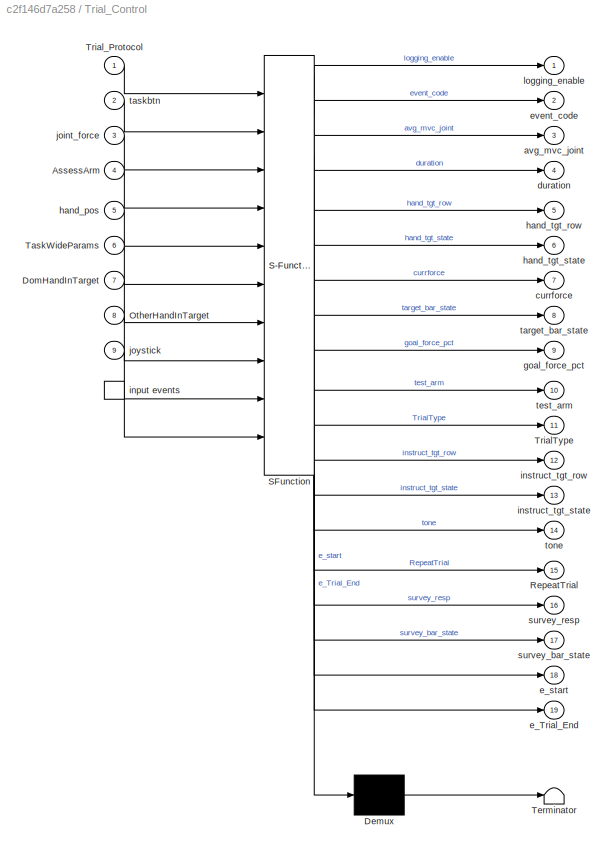
BLOCK [SubSystem] Trial_Control
  ErrorFcn = Stateflow.Translate.translate
  PermitHierarchicalResolution = ExplicitOnly
  Ports = [9, 19, 0, 1]
  RequestExecContextInheritance = off
  SFBlockType = Chart
  TreatAsAtomicUnit = on
BLOCK [Demux] Trial_Control/ Demux 
  Outputs = 1
  Ports = [1, 1]
BLOCK [S-Function] Trial_Control/ SFunction 
  EnableBusSupport = on
  FunctionName = sf_sfun
  PortCounts = [10 20]
  Ports = [10, 20]
  Tag = Stateflow S-Function survey_Iso_Force_Matching 1
BLOCK [Terminator] Trial_Control/ Terminator 
BLOCK [TriggerPort] Trial_Control/ input events 
  Ports = [0, 1]
  ShowOutputPort = on
  TriggerType = either
BLOCK [Inport] Trial_Control/AssessArm
  IconDisplay = Port number
  Port = 4
BLOCK [Inport] Trial_Control/DomHandInTarget
  IconDisplay = Port number
  Port = 7
BLOCK [Inport] Trial_Control/OtherHandInTarget
  IconDisplay = Port number
  Port = 8
BLOCK [Outport] Trial_Control/RepeatTrial
  IconDisplay = Port number
  Port = 15
BLOCK [Inport] Trial_Control/TaskWideParams
  IconDisplay = Port number
  Port = 6
BLOCK [Outport] Trial_Control/TrialType
  IconDisplay = Port number
  Port = 11
BLOCK [Inport] Trial_Control/Trial_Protocol
  IconDisplay = Port number
BLOCK [Outport] Trial_Control/avg_mvc_joint
  IconDisplay = Port number
  Port = 3
BLOCK [Outport] Trial_Control/currforce
  IconDisplay = Port number
  Port = 7
BLOCK [Outport] Trial_Control/duration
  IconDisplay = Port number
  Port = 4
BLOCK [Outport] Trial_Control/e_Trial_End
  IconDisplay = Port number
  Port = 19
BLOCK [Outport] Trial_Control/e_start
  IconDisplay = Port number
  Port = 18
BLOCK [Outport] Trial_Control/event_code
  IconDisplay = Port number
  Port = 2
BLOCK [Outport] Trial_Control/goal_force_pct
  IconDisplay = Port number
  Port = 9
BLOCK [Inport] Trial_Control/hand_pos
  IconDisplay = Port number
  Port = 5
BLOCK [Outport] Trial_Control/hand_tgt_row
  IconDisplay = Port number
  Port = 5
BLOCK [Outport] Trial_Control/hand_tgt_state
  IconDisplay = Port number
  Port = 6
BLOCK [Outport] Trial_Control/instruct_tgt_row
  IconDisplay = Port number
  Port = 12
BLOCK [Outport] Trial_Control/instruct_tgt_state
  IconDisplay = Port number
  Port = 13
BLOCK [Inport] Trial_Control/joint_force
  IconDisplay = Port number
  Port = 3
BLOCK [Inport] Trial_Control/joystick
  IconDisplay = Port number
  Port = 9
BLOCK [Outport] Trial_Control/logging_enable
  IconDisplay = Port number
BLOCK [Outport] Trial_Control/survey_bar_state
  IconDisplay = Port number
  Port = 17
BLOCK [Outport] Trial_Control/survey_resp
  IconDisplay = Port number
  Port = 16
BLOCK [Outport] Trial_Control/target_bar_state
  IconDisplay = Port number
  Port = 8
BLOCK [Inport] Trial_Control/taskbtn
  IconDisplay = Port number
  Port = 2
BLOCK [Outport] Trial_Control/test_arm
  IconDisplay = Port number
  Port = 10
BLOCK [Outport] Trial_Control/tone
  IconDisplay = Port number
  Port = 14
BLOCK [Concatenate] Vector Concatenate
  NumInputs = 5
  Ports = [5, 1]
BLOCK [Concatenate] Vector Concatenate1
  Ports = [2, 1]
BLOCK [Concatenate] Vector Concatenate2
  Ports = [2, 1]
BLOCK [Concatenate] Vector Concatenate3
  Ports = [2, 1]
ANNOTATION Joystick Response: Constants 1-4 can be changed depending on the orientation of the joystick: currently set for joystick to have x axis pointing forward and y axis pointing left 1 = right 2 = up 3 = left 4 = down
ANNOTATION Joystick Response: L or R?
ANNOTATION Subsystem: Do we need a memory block here?
ANNOTATION Subsystem: The subject arm is always element 1
ANNOTATION Subsystem: The subject arm is always elements 1-2; the other arm is elements 3-4
ANNOTATION Subsystem1/Trajectory Arm1: In the Position Controller dialog, the "Time base of desired Position input signal" was set to 0.001. This value is different from the Simulink sample-time of 0.0005 for that signal because the calculations that create that signal in the Create_Trajectory block are based on 1 kHz. Please see the Help for Position Controller block for more details.
ANNOTATION Subsystem1/Trajectory Arm1/Create_Trajectory: The Virtual_Trajectory block creates bell-shaped profile virtual trajectory. The output is a time-varying (x,y) position ('virtual_position'). The trajectory position starts at the current virtual_position output and ends at the target_position. The trajectory is initiated with the e_start input and lasts for a duration specified by the duration input. To change the current virtual position to the...<+272ch>
ANNOTATION Subsystem1/Trajectory Arm2: In the Position Controller dialog, the "Time base of desired Position input signal" was set to 0.001. This value is different from the Simulink sample-time of 0.0005 for that signal because the calculations that create that signal in the Create_Trajectory block are based on 1 kHz. Please see the Help for Position Controller block for more details.
ANNOTATION Subsystem1/Trajectory Arm2/Create_Trajectory: The Virtual_Trajectory block creates bell-shaped profile virtual trajectory. The output is a time-varying (x,y) position ('virtual_position'). The trajectory position starts at the current virtual_position output and ends at the target_position. The trajectory is initiated with the e_start input and lasts for a duration specified by the duration input. To change the current virtual position to the...<+272ch>
LINE Analog Inputs1:22 -> Joystick Response:2
NET Analog Inputs1:24 -> Joystick Response:1, Vector Concatenate2:1, Vector Concatenate2:2
LINE Analog Inputs:1 -> Vector Concatenate:5
LINE Compare To Constant:1 -> Mux3:1
LINE Force_Fdbk_Bar/Constant:1 -> Force_Fdbk_Bar/Show_ForceText:2
NET Force_Fdbk_Bar/CurrForce:1 -> Force_Fdbk_Bar/MakeBar:1, Force_Fdbk_Bar/MakeForceText:2, Force_Fdbk_Bar/Vector Concatenate:3
NET Force_Fdbk_Bar/Fdbk_enable:1 -> Force_Fdbk_Bar/MakeInstructions:3, Force_Fdbk_Bar/Show_Bar:2, Force_Fdbk_Bar/Vector Concatenate:4
LINE Force_Fdbk_Bar/From1:1 -> Force_Fdbk_Bar/Selector2:1
LINE Force_Fdbk_Bar/From2:1 -> Force_Fdbk_Bar/Selector3:1
LINE Force_Fdbk_Bar/From3:1 -> Force_Fdbk_Bar/Selector:1
LINE Force_Fdbk_Bar/From4:1 -> Force_Fdbk_Bar/Selector4:1
NET Force_Fdbk_Bar/Goa_force_pct:1 -> Force_Fdbk_Bar/MakeBar:3, Force_Fdbk_Bar/MakeInstructions:2, Force_Fdbk_Bar/Vector Concatenate:5
LINE Force_Fdbk_Bar/Instruct_Row:1 -> Force_Fdbk_Bar/Show_Instructions:1
NET Force_Fdbk_Bar/Instruct_State:1 -> Force_Fdbk_Bar/MakeInstructions:5, Force_Fdbk_Bar/Show_Instructions:2
NET Force_Fdbk_Bar/MVC:1 -> Force_Fdbk_Bar/MakeBar:2, Force_Fdbk_Bar/MakeForceText:1, Force_Fdbk_Bar/Vector Concatenate:2
LINE Force_Fdbk_Bar/MakeBar:1 -> Force_Fdbk_Bar/Vector Concatenate1:1
NET Force_Fdbk_Bar/MakeBar:2 -> Force_Fdbk_Bar/Vector Concatenate:6, Force_Fdbk_Bar/bar_height:1
LINE Force_Fdbk_Bar/MakeForceText:1 -> Force_Fdbk_Bar/Vector Concatenate1:2
LINE Force_Fdbk_Bar/MakeSurveyBar:1 -> Force_Fdbk_Bar/Vector Concatenate1:4
LINE Force_Fdbk_Bar/MakeSurveyText:1 -> Force_Fdbk_Bar/Vector Concatenate1:5
NET Force_Fdbk_Bar/Selector2:1 -> Force_Fdbk_Bar/Show_Bar:1, Force_Fdbk_Bar/Vector Concatenate:1
LINE Force_Fdbk_Bar/Selector3:1 -> Force_Fdbk_Bar/Show_Bar1:1
LINE Force_Fdbk_Bar/Selector4:1 -> Force_Fdbk_Bar/Show_Target_With_Label:1
LINE Force_Fdbk_Bar/Selector:1 -> Force_Fdbk_Bar/Show_ForceText:1
LINE Force_Fdbk_Bar/Show_Bar1:1 -> Force_Fdbk_Bar/MakeSurveyBar:2
LINE Force_Fdbk_Bar/Show_Bar:1 -> Force_Fdbk_Bar/MakeBar:4
LINE Force_Fdbk_Bar/Show_ForceText:1 -> Force_Fdbk_Bar/MakeForceText:3
NET Force_Fdbk_Bar/Show_Instructions:1 -> Force_Fdbk_Bar/MakeInstructions:4, Force_Fdbk_Bar/Vector Concatenate1:3
LINE Force_Fdbk_Bar/Show_Target_With_Label:1 -> Force_Fdbk_Bar/MakeSurveyText:3
LINE Force_Fdbk_Bar/Test_arm:1 -> Force_Fdbk_Bar/Selector1:2
NET Force_Fdbk_Bar/TrialType:1 -> Force_Fdbk_Bar/MakeForceText:4, Force_Fdbk_Bar/MakeInstructions:1, Force_Fdbk_Bar/MakeSurveyText:2
LINE Force_Fdbk_Bar/Vector Concatenate1:1 -> Force_Fdbk_Bar/VCODES:1
LINE Force_Fdbk_Bar/Vector Concatenate:1 -> Force_Fdbk_Bar/BarParams:1
NET Force_Fdbk_Bar/survey_bar_state:1 -> Force_Fdbk_Bar/Show_Bar1:2, Force_Fdbk_Bar/Show_Target_With_Label:2
NET Force_Fdbk_Bar/survey_resp:1 -> Force_Fdbk_Bar/MakeSurveyBar:1, Force_Fdbk_Bar/MakeSurveyText:1
LINE Force_Fdbk_Bar:1 -> Vector Concatenate:4
LINE Force_Fdbk_Bar:2 -> Matrix Concatenation:2
LINE Force_Fdbk_Bar:3 -> Scope 1:1
LINE From1:1 -> Trial_Control:6
NET From4:1 -> Compare To Constant:1, Trial_Control:2
LINE From:1 -> Vector Concatenate:1
LINE GUI Control:1 -> Mux3:2
LINE GUI Control:2 -> Trial_Control:1
LINE Joystick Response/Abs1:1 -> Joystick Response/Relational Operator:2
LINE Joystick Response/Abs:1 -> Joystick Response/Relational Operator:1
LINE Joystick Response/Add1:1 -> Joystick Response/Switch:1
LINE Joystick Response/Add:1 -> Joystick Response/Switch:3
LINE Joystick Response/Compare To Constant1:1 -> Joystick Response/Product3:1
LINE Joystick Response/Compare To Constant3:1 -> Joystick Response/Product1:2
LINE Joystick Response/Compare To Constant4:1 -> Joystick Response/Product2:1
LINE Joystick Response/Compare To Constant:1 -> Joystick Response/Product:2
LINE Joystick Response/Constant1:1 -> Joystick Response/Product:1
LINE Joystick Response/Constant2:1 -> Joystick Response/Product1:1
LINE Joystick Response/Constant3:1 -> Joystick Response/Product2:2
LINE Joystick Response/Constant4:1 -> Joystick Response/Product3:2
NET Joystick Response/Constant:1 -> Joystick Response/Subtract1:2, Joystick Response/Subtract:2
NET Joystick Response/LR:1 -> Joystick Response/Compare To Constant3:1, Joystick Response/Compare To Constant4:1, Joystick Response/Subtract1:1
LINE Joystick Response/Product1:1 -> Joystick Response/Add:2
LINE Joystick Response/Product2:1 -> Joystick Response/Add:1
LINE Joystick Response/Product3:1 -> Joystick Response/Add1:1
LINE Joystick Response/Product:1 -> Joystick Response/Add1:2
LINE Joystick Response/Relational Operator:1 -> Joystick Response/Switch:2
LINE Joystick Response/Subtract1:1 -> Joystick Response/Abs1:1
LINE Joystick Response/Subtract:1 -> Joystick Response/Abs:1
LINE Joystick Response/Switch:1 -> Joystick Response/JSdir:1
NET Joystick Response/UD:1 -> Joystick Response/Compare To Constant1:1, Joystick Response/Compare To Constant:1, Joystick Response/Subtract:1
NET Joystick Response:1 -> Scope 3:1, Trial_Control:9
LINE KINARM_HandInTarget1:1 -> Trial_Control:8
LINE KINARM_HandInTarget:1 -> Trial_Control:7
LINE Matrix Concatenation:1 -> Process_Video_CMD:1
LINE Mux3:1 -> Trial_Control:trigger
LINE Play Sound/In1:1 -> Play Sound/Play sound over and over:1
NET Play Sound/Play sound over and over:1 -> Play Sound/PCI-6229 DA:1, Play Sound/Scope :1
LINE Play Sound/Subsystem2/Constant1:1 -> Play Sound/Subsystem2/soundWaveform:1
LINE Play Sound/Subsystem2:1 -> Play Sound/Play sound over and over:4
LINE Play Sound/Subsystem3/Constant1:1 -> Play Sound/Subsystem3/soundWaveform:1
LINE Play Sound/Subsystem3:1 -> Play Sound/Play sound over and over:3
LINE Play Sound/Subsystem4/Constant1:1 -> Play Sound/Subsystem4/soundWaveform:1
LINE Play Sound/Subsystem4:1 -> Play Sound/Play sound over and over:2
LINE Subsystem/Bus Selector1:1 -> Subsystem/Switch1:1
LINE Subsystem/Bus Selector1:2 -> Subsystem/Switch1:2
LINE Subsystem/Bus Selector1:3 -> Subsystem/Switch1:3
LINE Subsystem/Bus Selector:1 -> Subsystem/Divide:1
LINE Subsystem/Bus Selector:2 -> Subsystem/Divide:2
NET Subsystem/Bus Selector:3 -> Subsystem/Arm:1, Subsystem/Switch2:2, Subsystem/Switch:2
LINE Subsystem/Bus Selector:4 -> Subsystem/Divide1:1
LINE Subsystem/Bus Selector:5 -> Subsystem/Divide1:2
NET Subsystem/Divide1:1 -> Subsystem/Switch2:1, Subsystem/Switch:3
NET Subsystem/Divide:1 -> Subsystem/Switch2:3, Subsystem/Switch:1
LINE Subsystem/From1:1 -> Subsystem/Selector2:1
NET Subsystem/From:1 -> Subsystem/Bus Selector1:1, Subsystem/Bus Selector:1
LINE Subsystem/Selector1:1 -> Subsystem/Vector Concatenate:2
NET Subsystem/Selector2:1 -> Subsystem/Selector1:2, Subsystem/Selector:2
LINE Subsystem/Selector:1 -> Subsystem/Vector Concatenate:1
NET Subsystem/Switch1:1 -> Subsystem/Goto1:1, Subsystem/Hand_Pos:1
NET Subsystem/Switch2:1 -> Subsystem/Selector1:1, Subsystem/Vector Concatenate1:2
NET Subsystem/Switch:1 -> Subsystem/Selector:1, Subsystem/Vector Concatenate1:1
LINE Subsystem/Vector Concatenate1:1 -> Subsystem/Goto:1
NET Subsystem/Vector Concatenate:1 -> Subsystem/Goto2:1, Subsystem/Joint_Force:1
LINE Subsystem1/Add:1 -> Subsystem1/Torques:1
NET Subsystem1/Arm_tgt_rows:1 -> Subsystem1/Selector1:1, Subsystem1/Selector:1
NET Subsystem1/Arms_tgt_state:1 -> Subsystem1/Show_Target1:2, Subsystem1/Show_Target:2
LINE Subsystem1/Selector1:1 -> Subsystem1/Show_Target1:1
LINE Subsystem1/Selector:1 -> Subsystem1/Show_Target:1
NET Subsystem1/Show_Target1:1 -> Subsystem1/Trajectory Arm2:2, Subsystem1/Vector Concatenate:2
NET Subsystem1/Show_Target:1 -> Subsystem1/Trajectory Arm1:2, Subsystem1/Vector Concatenate:1
LINE Subsystem1/Trajectory Arm1/Create_Trajectory/Detect Change:1 -> Subsystem1/Trajectory Arm1/Create_Trajectory/Virtual_Trajectory:4
LINE Subsystem1/Trajectory Arm1/Create_Trajectory/From3:1 -> Subsystem1/Trajectory Arm1/Create_Trajectory/get_arm_info:3
LINE Subsystem1/Trajectory Arm1/Create_Trajectory/From:1 -> Subsystem1/Trajectory Arm1/Create_Trajectory/get_arm_info:2
LINE Subsystem1/Trajectory Arm1/Create_Trajectory/Virtual_Trajectory/Data Type Conversion1:1 -> Subsystem1/Trajectory Arm1/Create_Trajectory/Virtual_Trajectory/Mux:2
LINE Subsystem1/Trajectory Arm1/Create_Trajectory/Virtual_Trajectory/Data Type Conversion2:1 -> Subsystem1/Trajectory Arm1/Create_Trajectory/Virtual_Trajectory/Mux:1
LINE Subsystem1/Trajectory Arm1/Create_Trajectory/Virtual_Trajectory/Extract_Position1:1 -> Subsystem1/Trajectory Arm1/Create_Trajectory/Virtual_Trajectory/VirtualTrajectory:3
LINE Subsystem1/Trajectory Arm1/Create_Trajectory/Virtual_Trajectory/Extract_Position:1 -> Subsystem1/Trajectory Arm1/Create_Trajectory/Virtual_Trajectory/VirtualTrajectory:2
LINE Subsystem1/Trajectory Arm1/Create_Trajectory/Virtual_Trajectory/From:1 -> Subsystem1/Trajectory Arm1/Create_Trajectory/Virtual_Trajectory/Data Type Conversion2:1
LINE Subsystem1/Trajectory Arm1/Create_Trajectory/Virtual_Trajectory/Mux:1 -> Subsystem1/Trajectory Arm1/Create_Trajectory/Virtual_Trajectory/VirtualTrajectory:trigger
LINE Subsystem1/Trajectory Arm1/Create_Trajectory/Virtual_Trajectory/VirtualTrajectory:1 -> Subsystem1/Trajectory Arm1/Create_Trajectory/Virtual_Trajectory/virtual_position:1
LINE Subsystem1/Trajectory Arm1/Create_Trajectory/Virtual_Trajectory/VirtualTrajectory:2 -> Subsystem1/Trajectory Arm1/Create_Trajectory/Virtual_Trajectory/traj_status:1
LINE Subsystem1/Trajectory Arm1/Create_Trajectory/Virtual_Trajectory/VirtualTrajectory:3 -> Subsystem1/Trajectory Arm1/Create_Trajectory/Virtual_Trajectory/reset_controller:1
LINE Subsystem1/Trajectory Arm1/Create_Trajectory/Virtual_Trajectory/duration:1 -> Subsystem1/Trajectory Arm1/Create_Trajectory/Virtual_Trajectory/VirtualTrajectory:1
LINE Subsystem1/Trajectory Arm1/Create_Trajectory/Virtual_Trajectory/e_start:1 -> Subsystem1/Trajectory Arm1/Create_Trajectory/Virtual_Trajectory/Data Type Conversion1:1
LINE Subsystem1/Trajectory Arm1/Create_Trajectory/Virtual_Trajectory/reset_position:1 -> Subsystem1/Trajectory Arm1/Create_Trajectory/Virtual_Trajectory/Extract_Position1:1
LINE Subsystem1/Trajectory Arm1/Create_Trajectory/Virtual_Trajectory/robot_enabled:1 -> Subsystem1/Trajectory Arm1/Create_Trajectory/Virtual_Trajectory/VirtualTrajectory:5
LINE Subsystem1/Trajectory Arm1/Create_Trajectory/Virtual_Trajectory/target_position:1 -> Subsystem1/Trajectory Arm1/Create_Trajectory/Virtual_Trajectory/Extract_Position:1
LINE Subsystem1/Trajectory Arm1/Create_Trajectory/Virtual_Trajectory/task_status:1 -> Subsystem1/Trajectory Arm1/Create_Trajectory/Virtual_Trajectory/VirtualTrajectory:4
LINE Subsystem1/Trajectory Arm1/Create_Trajectory/Virtual_Trajectory:1 -> Subsystem1/Trajectory Arm1/Create_Trajectory/virtual_position:1
LINE Subsystem1/Trajectory Arm1/Create_Trajectory/Virtual_Trajectory:2 -> Subsystem1/Trajectory Arm1/Create_Trajectory/Terminator:1
LINE Subsystem1/Trajectory Arm1/Create_Trajectory/Virtual_Trajectory:3 -> Subsystem1/Trajectory Arm1/Create_Trajectory/reset_controller:1
LINE Subsystem1/Trajectory Arm1/Create_Trajectory/e_start:1 -> Subsystem1/Trajectory Arm1/Create_Trajectory/Detect Change:1
LINE Subsystem1/Trajectory Arm1/Create_Trajectory/get_arm_info:1 -> Subsystem1/Trajectory Arm1/Create_Trajectory/Virtual_Trajectory:3
LINE Subsystem1/Trajectory Arm1/Create_Trajectory/get_arm_info:2 -> Subsystem1/Trajectory Arm1/Create_Trajectory/Virtual_Trajectory:5
LINE Subsystem1/Trajectory Arm1/Create_Trajectory/get_arm_info:3 -> Subsystem1/Trajectory Arm1/Create_Trajectory/Virtual_Trajectory:6
LINE Subsystem1/Trajectory Arm1/Create_Trajectory/nominal_duration:1 -> Subsystem1/Trajectory Arm1/Create_Trajectory/Virtual_Trajectory:1
LINE Subsystem1/Trajectory Arm1/Create_Trajectory/robot scaling:1 -> Subsystem1/Trajectory Arm1/Create_Trajectory/get_arm_info:4
LINE Subsystem1/Trajectory Arm1/Create_Trajectory/target_position:1 -> Subsystem1/Trajectory Arm1/Create_Trajectory/Virtual_Trajectory:2
LINE Subsystem1/Trajectory Arm1/Create_Trajectory/use dominant hand:1 -> Subsystem1/Trajectory Arm1/Create_Trajectory/get_arm_info:1
LINE Subsystem1/Trajectory Arm1/Create_Trajectory:1 -> Subsystem1/Trajectory Arm1/KINARM_Exo_Position_Controller:1
LINE Subsystem1/Trajectory Arm1/Create_Trajectory:2 -> Subsystem1/Trajectory Arm1/KINARM_Exo_Position_Controller:2
LINE Subsystem1/Trajectory Arm1/Duration:1 -> Subsystem1/Trajectory Arm1/Create_Trajectory:1
LINE Subsystem1/Trajectory Arm1/From:1 -> Subsystem1/Trajectory Arm1/Create_Trajectory:2
LINE Subsystem1/Trajectory Arm1/KINARM_Exo_Position_Controller:1 -> Subsystem1/Trajectory Arm1/EXO Torques:1
LINE Subsystem1/Trajectory Arm1/calculate robot scaling/Bus Selector1:1 -> Subsystem1/Trajectory Arm1/calculate robot scaling/Mux2:2
LINE Subsystem1/Trajectory Arm1/calculate robot scaling/Bus Selector:1 -> Subsystem1/Trajectory Arm1/calculate robot scaling/Mux2:1
LINE Subsystem1/Trajectory Arm1/calculate robot scaling/From1:1 -> Subsystem1/Trajectory Arm1/calculate robot scaling/Mux:1
LINE Subsystem1/Trajectory Arm1/calculate robot scaling/From2:1 -> Subsystem1/Trajectory Arm1/calculate robot scaling/Mux:2
LINE Subsystem1/Trajectory Arm1/calculate robot scaling/From5:1 -> Subsystem1/Trajectory Arm1/calculate robot scaling/Bus Selector:1
LINE Subsystem1/Trajectory Arm1/calculate robot scaling/From6:1 -> Subsystem1/Trajectory Arm1/calculate robot scaling/Bus Selector1:1
LINE Subsystem1/Trajectory Arm1/calculate robot scaling/MATLAB Function:1 -> Subsystem1/Trajectory Arm1/calculate robot scaling/scaling:1
LINE Subsystem1/Trajectory Arm1/calculate robot scaling/Mux2:1 -> Subsystem1/Trajectory Arm1/calculate robot scaling/MATLAB Function:1
LINE Subsystem1/Trajectory Arm1/calculate robot scaling/Mux:1 -> Subsystem1/Trajectory Arm1/calculate robot scaling/MATLAB Function:2
LINE Subsystem1/Trajectory Arm1/calculate robot scaling:1 -> Subsystem1/Trajectory Arm1/Create_Trajectory:4
LINE Subsystem1/Trajectory Arm1/target_position:1 -> Subsystem1/Trajectory Arm1/Create_Trajectory:3
LINE Subsystem1/Trajectory Arm1:1 -> Subsystem1/Add:1
LINE Subsystem1/Trajectory Arm2/Create_Trajectory/Detect Change:1 -> Subsystem1/Trajectory Arm2/Create_Trajectory/Virtual_Trajectory:4
LINE Subsystem1/Trajectory Arm2/Create_Trajectory/From3:1 -> Subsystem1/Trajectory Arm2/Create_Trajectory/get_arm_info:3
LINE Subsystem1/Trajectory Arm2/Create_Trajectory/From:1 -> Subsystem1/Trajectory Arm2/Create_Trajectory/get_arm_info:2
LINE Subsystem1/Trajectory Arm2/Create_Trajectory/Virtual_Trajectory/Data Type Conversion1:1 -> Subsystem1/Trajectory Arm2/Create_Trajectory/Virtual_Trajectory/Mux:2
LINE Subsystem1/Trajectory Arm2/Create_Trajectory/Virtual_Trajectory/Data Type Conversion2:1 -> Subsystem1/Trajectory Arm2/Create_Trajectory/Virtual_Trajectory/Mux:1
LINE Subsystem1/Trajectory Arm2/Create_Trajectory/Virtual_Trajectory/Extract_Position1:1 -> Subsystem1/Trajectory Arm2/Create_Trajectory/Virtual_Trajectory/VirtualTrajectory:3
LINE Subsystem1/Trajectory Arm2/Create_Trajectory/Virtual_Trajectory/Extract_Position:1 -> Subsystem1/Trajectory Arm2/Create_Trajectory/Virtual_Trajectory/VirtualTrajectory:2
LINE Subsystem1/Trajectory Arm2/Create_Trajectory/Virtual_Trajectory/From:1 -> Subsystem1/Trajectory Arm2/Create_Trajectory/Virtual_Trajectory/Data Type Conversion2:1
LINE Subsystem1/Trajectory Arm2/Create_Trajectory/Virtual_Trajectory/Mux:1 -> Subsystem1/Trajectory Arm2/Create_Trajectory/Virtual_Trajectory/VirtualTrajectory:trigger
LINE Subsystem1/Trajectory Arm2/Create_Trajectory/Virtual_Trajectory/VirtualTrajectory:1 -> Subsystem1/Trajectory Arm2/Create_Trajectory/Virtual_Trajectory/virtual_position:1
LINE Subsystem1/Trajectory Arm2/Create_Trajectory/Virtual_Trajectory/VirtualTrajectory:2 -> Subsystem1/Trajectory Arm2/Create_Trajectory/Virtual_Trajectory/traj_status:1
LINE Subsystem1/Trajectory Arm2/Create_Trajectory/Virtual_Trajectory/VirtualTrajectory:3 -> Subsystem1/Trajectory Arm2/Create_Trajectory/Virtual_Trajectory/reset_controller:1
LINE Subsystem1/Trajectory Arm2/Create_Trajectory/Virtual_Trajectory/duration:1 -> Subsystem1/Trajectory Arm2/Create_Trajectory/Virtual_Trajectory/VirtualTrajectory:1
LINE Subsystem1/Trajectory Arm2/Create_Trajectory/Virtual_Trajectory/e_start:1 -> Subsystem1/Trajectory Arm2/Create_Trajectory/Virtual_Trajectory/Data Type Conversion1:1
LINE Subsystem1/Trajectory Arm2/Create_Trajectory/Virtual_Trajectory/reset_position:1 -> Subsystem1/Trajectory Arm2/Create_Trajectory/Virtual_Trajectory/Extract_Position1:1
LINE Subsystem1/Trajectory Arm2/Create_Trajectory/Virtual_Trajectory/robot_enabled:1 -> Subsystem1/Trajectory Arm2/Create_Trajectory/Virtual_Trajectory/VirtualTrajectory:5
LINE Subsystem1/Trajectory Arm2/Create_Trajectory/Virtual_Trajectory/target_position:1 -> Subsystem1/Trajectory Arm2/Create_Trajectory/Virtual_Trajectory/Extract_Position:1
LINE Subsystem1/Trajectory Arm2/Create_Trajectory/Virtual_Trajectory/task_status:1 -> Subsystem1/Trajectory Arm2/Create_Trajectory/Virtual_Trajectory/VirtualTrajectory:4
LINE Subsystem1/Trajectory Arm2/Create_Trajectory/Virtual_Trajectory:1 -> Subsystem1/Trajectory Arm2/Create_Trajectory/virtual_position:1
LINE Subsystem1/Trajectory Arm2/Create_Trajectory/Virtual_Trajectory:2 -> Subsystem1/Trajectory Arm2/Create_Trajectory/Terminator:1
LINE Subsystem1/Trajectory Arm2/Create_Trajectory/Virtual_Trajectory:3 -> Subsystem1/Trajectory Arm2/Create_Trajectory/reset_controller:1
LINE Subsystem1/Trajectory Arm2/Create_Trajectory/e_start:1 -> Subsystem1/Trajectory Arm2/Create_Trajectory/Detect Change:1
LINE Subsystem1/Trajectory Arm2/Create_Trajectory/get_arm_info:1 -> Subsystem1/Trajectory Arm2/Create_Trajectory/Virtual_Trajectory:3
LINE Subsystem1/Trajectory Arm2/Create_Trajectory/get_arm_info:2 -> Subsystem1/Trajectory Arm2/Create_Trajectory/Virtual_Trajectory:5
LINE Subsystem1/Trajectory Arm2/Create_Trajectory/get_arm_info:3 -> Subsystem1/Trajectory Arm2/Create_Trajectory/Virtual_Trajectory:6
LINE Subsystem1/Trajectory Arm2/Create_Trajectory/nominal_duration:1 -> Subsystem1/Trajectory Arm2/Create_Trajectory/Virtual_Trajectory:1
LINE Subsystem1/Trajectory Arm2/Create_Trajectory/robot scaling:1 -> Subsystem1/Trajectory Arm2/Create_Trajectory/get_arm_info:4
LINE Subsystem1/Trajectory Arm2/Create_Trajectory/target_position:1 -> Subsystem1/Trajectory Arm2/Create_Trajectory/Virtual_Trajectory:2
LINE Subsystem1/Trajectory Arm2/Create_Trajectory/use dominant hand:1 -> Subsystem1/Trajectory Arm2/Create_Trajectory/get_arm_info:1
LINE Subsystem1/Trajectory Arm2/Create_Trajectory:1 -> Subsystem1/Trajectory Arm2/KINARM_Exo_Position_Controller:1
LINE Subsystem1/Trajectory Arm2/Create_Trajectory:2 -> Subsystem1/Trajectory Arm2/KINARM_Exo_Position_Controller:2
LINE Subsystem1/Trajectory Arm2/Duration:1 -> Subsystem1/Trajectory Arm2/Create_Trajectory:1
LINE Subsystem1/Trajectory Arm2/From:1 -> Subsystem1/Trajectory Arm2/Create_Trajectory:2
LINE Subsystem1/Trajectory Arm2/KINARM_Exo_Position_Controller:1 -> Subsystem1/Trajectory Arm2/EXO Torques:1
LINE Subsystem1/Trajectory Arm2/calculate robot scaling/Bus Selector1:1 -> Subsystem1/Trajectory Arm2/calculate robot scaling/Mux2:2
LINE Subsystem1/Trajectory Arm2/calculate robot scaling/Bus Selector:1 -> Subsystem1/Trajectory Arm2/calculate robot scaling/Mux2:1
LINE Subsystem1/Trajectory Arm2/calculate robot scaling/From1:1 -> Subsystem1/Trajectory Arm2/calculate robot scaling/Mux:1
LINE Subsystem1/Trajectory Arm2/calculate robot scaling/From2:1 -> Subsystem1/Trajectory Arm2/calculate robot scaling/Mux:2
LINE Subsystem1/Trajectory Arm2/calculate robot scaling/From5:1 -> Subsystem1/Trajectory Arm2/calculate robot scaling/Bus Selector:1
LINE Subsystem1/Trajectory Arm2/calculate robot scaling/From6:1 -> Subsystem1/Trajectory Arm2/calculate robot scaling/Bus Selector1:1
LINE Subsystem1/Trajectory Arm2/calculate robot scaling/MATLAB Function:1 -> Subsystem1/Trajectory Arm2/calculate robot scaling/scaling:1
LINE Subsystem1/Trajectory Arm2/calculate robot scaling/Mux2:1 -> Subsystem1/Trajectory Arm2/calculate robot scaling/MATLAB Function:1
LINE Subsystem1/Trajectory Arm2/calculate robot scaling/Mux:1 -> Subsystem1/Trajectory Arm2/calculate robot scaling/MATLAB Function:2
LINE Subsystem1/Trajectory Arm2/calculate robot scaling:1 -> Subsystem1/Trajectory Arm2/Create_Trajectory:4
LINE Subsystem1/Trajectory Arm2/target_position:1 -> Subsystem1/Trajectory Arm2/Create_Trajectory:3
LINE Subsystem1/Trajectory Arm2:1 -> Subsystem1/Add:2
LINE Subsystem1/Vector Concatenate:1 -> Subsystem1/VCODES:1
NET Subsystem1/duration:1 -> Subsystem1/Trajectory Arm1:1, Subsystem1/Trajectory Arm2:1
NET Subsystem1:1 -> KINARM_Exo_Apply_Loads:1, Scope :1
LINE Subsystem1:2 -> Matrix Concatenation:1
NET Subsystem:1 -> Trial_Control:3, Vector Concatenate1:1
NET Subsystem:2 -> Trial_Control:4, Vector Concatenate1:2
LINE Subsystem:3 -> Trial_Control:5
LINE Trial_Control:1 -> DataLogging:1
LINE Trial_Control:10 -> Force_Fdbk_Bar:5
LINE Trial_Control:11 -> Force_Fdbk_Bar:6
LINE Trial_Control:12 -> Force_Fdbk_Bar:7
NET Trial_Control:13 -> Force_Fdbk_Bar:8, Vector Concatenate:3
LINE Trial_Control:14 -> Play Sound:1
LINE Trial_Control:15 -> GUI Control:1
NET Trial_Control:16 -> Force_Fdbk_Bar:9, Vector Concatenate3:2
LINE Trial_Control:17 -> Force_Fdbk_Bar:10
LINE Trial_Control:18 -> Goto:1
LINE Trial_Control:19 -> GUI Control:2
NET Trial_Control:2 -> DataLogging:2, Vector Concatenate3:1
NET Trial_Control:3 -> Force_Fdbk_Bar:1, Vector Concatenate:2
LINE Trial_Control:4 -> Subsystem1:1
LINE Trial_Control:5 -> Subsystem1:2
LINE Trial_Control:6 -> Subsystem1:3
LINE Trial_Control:7 -> Force_Fdbk_Bar:2
LINE Trial_Control:8 -> Force_Fdbk_Bar:3
LINE Trial_Control:9 -> Force_Fdbk_Bar:4
LINE Vector Concatenate1:1 -> Scope 2:1
LINE Vector Concatenate2:1 -> Scope 4:1
LINE Vector Concatenate3:1 -> Scope 5:1
LINE Vector Concatenate:1 -> DataLogging:3
note: NET lines group one-source signal fan-out (src -> all destinations, sorted); 1:1 wires keep LINE
CHART Trial_Control states=32 transitions=47
  STATE_LABEL 'init/\n//bring the hand to the start position\nmvc_joint = 0;\nn_mvc = 1*(avg_mvc_joint > 1e-4);\navg_mvc_joint = TaskWideParams[K_MVC];\n\nhand_tgt_row[1] = TaskWideParams[K_ARM1_TGT];\nhand_tgt_row[2] = TaskWideParams[K_ARM2_TGT];\nhand_tgt_state = 1;\n\ntest_arm = 1; //1 means subject assessment arm, 2 means opposite arm\n\ninstruct_tgt_row = 0;\ninstruct_tgt_state = 0;\n\nduration = 3000;\n\n\n\n'
  STATE_LABEL '[meanmvc,itrial1, forcehist1] = calcmvc(forcehist,itrial,force)'
  STATE_LABEL 'SCRIPT:\nfunction [meanmvc,itrial1, forcehist1] = calcmvc(forcehist,itrial,force)\n \n \nitrial1 = itrial+1;\nif itrial1 > length(forcehist)\n    itrial1 = 1;\nend\n\nforcehist(itrial1) = force;\n\nmeanmvc = sum(forcehist)/sum(forcehist > 0);\n\nforcehist1 = forcehist;\n\n\n%meanmvc = mean(nonzeros(forcehist));\n'
  STATE_LABEL 'Main_Trial'
  STATE_LABEL 'InitFatigueTrial/\nevent_code = E_FATIGUE_TRIAL;\nlogging_enable = 1;\nduration = 1;\n\ninstruct_tgt_row = Trial_Protocol[TARGET_COL];\ninstruct_tgt_state = 1;\n\ntmpforce = 0;\ntmpcounter = 0;\niforce = 0;\nmaxforce = 0;\n\ngoal_force_pct = Trial_Protocol[GOAL_F_PCT];\ngoal_force = avg_mvc_joint*(goal_force_pct/100.0);\ntarget_bar_state = Trial_Protocol[DO_FDBK];\n\nmin_force = Trial_Protocol[MIN_FORCE];\nforce_th...<+255ch>'
  STATE_LABEL 'InitSurveyTrial/\n// Init the survey and parameters\n// Just needs to update, display happens in VCODE section\nevent_code = E_SURVEY_INIT;\nlogging_enable = 1;\n\ninstruct_tgt_row = Trial_Protocol[TARGET_COL];\ninstruct_tgt_state = 4;\nsurvey_bar_state=1;\n\nsurvey_resp=4;\nsurvey_delta = 1;\n\n'
  STATE_LABEL 'InitForceTrial/\nevent_code = E_FORCE_TRIAL;\nlogging_enable = 1;\nduration = 1;\n\ninstruct_tgt_row = Trial_Protocol[TARGET_COL];\ninstruct_tgt_state = 1;\n\ntmpforce = 0;\ntmpcounter = 0;\niforce = 0;\nmaxforce = 0;\n\ngoal_force_pct = Trial_Protocol[GOAL_F_PCT];\ngoal_force = avg_mvc_joint*(goal_force_pct/100.0);\ntarget_bar_state = Trial_Protocol[DO_FDBK];\n\nmin_force = Trial_Protocol[MIN_FORCE];\nforce_thresh...<+264ch>'
  STATE_LABEL 'InitMVC/\nevent_code = E_TEST_MVC;\nlogging_enable = 1;\nduration = 1;\n\ninstruct_tgt_row = Trial_Protocol[TARGET_COL];\ninstruct_tgt_state = 1;\ntarget_bar_state = 0;\n\nmin_force = Trial_Protocol[MIN_FORCE];\n\ntmpforce = 0;\nmaxforce = min_force;\ncurrforce = 0;\n\ntest_arm = 1;\n\nhold_time = Trial_Protocol[HOLD_TIME];\nmax_move_time = Trial_Protocol[MAX_MOVE_TIME];\ntick = 0;\n\ntone = 1;'
  STATE_LABEL 'SurveyIncrease/\nevent_code=E_SURVEY_INC;\nsurvey_resp+=survey_delta;\n'
  STATE_LABEL 'SurveyMain/\n// Main block, set termination conditioin later\n// All options loop back to this block\nevent_code=E_SURVEY_MAIN;\n\nduring:\nresponse=joystick;'
  STATE_LABEL 'SurveyDecrease/\nevent_code=E_SURVEY_DEC;\nsurvey_resp-=survey_delta;'
  STATE_LABEL 'FatigueApplyForce/\nevent_code = E_INIT_FATIGUE;\n\nduring:\nmaxforce = joint_force[test_arm];\ncurrforce = joint_force[test_arm];\ntmpcounter = 0;\ntick++;\n\n'
  STATE_LABEL 'ApplyForce/\nevent_code = E_INIT_FORCE;\n\nduring:\nmaxforce = joint_force[1];\ntmpcounter = 0;\ntick++;\ncurrforce = joint_force[1];\n\n'
  STATE_LABEL 'SetMVC/\nevent_code = E_SET_MVC;\ntmpcounter = 0;\ntmp_forcehist = 0;\niforce = 0;\n\nduring: //check and update the estimated mvc\ntick++;\ncurrforce = joint_force[1];\n[maxforce,iforce, tmp_forcehist] = calcmvc(tmp_forcehist,iforce,currforce)'
  STATE_LABEL 'HoldMVC/\n\nevent_code = E_HOLD_MVC;\ntone = 0;\n\nduring: //check and update the estimated mvc\ntick++;\ntmpcounter++;\ncurrforce = joint_force[1];\n'
  STATE_LABEL 'HoldFatigueForce/\nevent_code = E_HOLD_FATIGUE;\ntone = 0;\ninstruct_tgt_state = 3;\n\nduring:\nmaxforce = joint_force[test_arm];\ncurrforce = joint_force[test_arm];\ntmpcounter++;\ntick++;\n'
  STATE_LABEL 'HoldAppliedForce/\nevent_code = E_HOLD_FORCE;\ntone = 0;\n\nduring:\nmaxforce = joint_force[1];\ncurrforce = joint_force[1];\ntmpcounter++;\ntick++;\n'
  STATE_LABEL 'WaitAcceptMVC/\n\nevent_code = E_CHECK_MVC;\ncurrforce = maxforce;\n\ninstruct_tgt_state = 2;\ntone = 1;\n\n'
  STATE_LABEL 'Ready/\n\ninstruct_tgt_state = 3;\ntest_arm = Trial_Protocol[TEST_ARM];\n\ntick = 0;\ntmpcounter = 0;\ntone = 1;\n\nduring:\ncurrforce = joint_force[test_arm];'
  STATE_LABEL 'Rest1/\n\ninstruct_tgt_state = 2;\n\ntarget_bar_state = 0;\n\nduring: \ncurrforce = joint_force[1];'
  STATE_LABEL 'Rest2/\nevent_code = E_REST_FORCE;\n\nduration = Trial_Protocol[REST_TIME];'
  STATE_LABEL 'AcceptMVC/\n\nevent_code = E_ACCEPT_MVC;\n\n//record the MVC on this trial if desired\nmvc_joint += maxforce; %*(tmpcounter >= force_hold_time);\nn_mvc += 1; %*(tmpcounter >= force_hold_time);\navg_mvc_joint = mvc_joint/n_mvc;\n\n'
  STATE_LABEL 'EndOfFatigueTrial/\nevent_code = E_EOT;\n\ninstruct_tgt_state = 2;\nTrialType = 0;\ntone = 2;'
  STATE_LABEL 'EndOfTrial1/\nevent_code = E_EOT;\n\ninstruct_tgt_state = 2;\nsurvey_bar_state=0;\nTrialType = 0;'
  STATE_LABEL 'EndMVC/\nevent_code = E_EOT;\n\ninstruct_tgt_state = 2;'
  STATE_LABEL 'ApplyForce2/\nevent_code = E_INIT_MATCH_FORCE;\n\nduring:\nmaxforce = joint_force[test_arm];\ncurrforce = joint_force[test_arm];\ntmpcounter = 0;\ntick++;\n\n'
  STATE_LABEL 'HoldAppliedForce2/\nevent_code = E_HOLD_MATCH_FORCE;\n\nduring:\nmaxforce = joint_force[test_arm];\ncurrforce = joint_force[test_arm];\ntmpcounter++;\ntick++;\n'
  STATE_LABEL 'EndOfTrial/\nevent_code = E_EOT;\n\ninstruct_tgt_state = 2;\nTrialType = 0;'
  STATE_LABEL '[TrialType==4]'
  STATE_LABEL '[TrialType == 3]'
  STATE_LABEL '[TrialType == 1]'
  STATE_LABEL '[TrialType == 2]/'
  STATE_LABEL 'after(1,e_clk)'
  STATE_LABEL '[response==2 && survey_resp<8]'
  STATE_LABEL 'after(1,e_clk)'
  STATE_LABEL '[after(500,e_clk)]/\nresponse=0;'
  STATE_LABEL 'after(1,e_clk)'
  STATE_LABEL '[after(10000,e_clk)]'
  STATE_LABEL '[response == 4 && survey_resp>0]'
  STATE_LABEL '[(joint_force[test_arm] > min_force) && after(1, e_clk)]'
CHART Subsystem1/Trajectory Arm1/calculate robot scaling/MATLAB Function states=1 transitions=1
  STATE_LABEL 'eML_blk_kernel()'
  STATE_LABEL 'SCRIPT:\nfunction scaling = fcn(robot_type, exo_scaling)\n%#codegen\n\nscaling = [0, 0];\n\n%0 = EXO, 1 = EP, 2 = NHP\nfor n=1:2\n    if robot_type(n) == 1\n        scaling(n) = 0;\n    else\n        scaling(n) = exo_scaling(n);\n    end\nend'
CHART Subsystem1/Trajectory Arm1/Create_Trajectory/Virtual_Trajectory/Extract_Position states=1 transitions=1
  STATE_LABEL 'eML_blk_kernel()'
  STATE_LABEL 'SCRIPT:\nfunction position = fcn(u)\n\nposition=[0,0];\t%initialization\nif length(u)==2\t%input is assumed to be (x,y) position, global coordinates, (m)\t\t\n\tposition=u;\nelse\t\t\t%input is assumed to be a VCODE\n\tposition(1)=u(3);\n\tposition(2)=u(4);\nend'  <repeated x4 — deduplicated; at blocks: Extract_Position, Extract_Position1>
CHART Subsystem1/Trajectory Arm1/Create_Trajectory/Virtual_Trajectory/Extract_Position1 states=1 transitions=1
  STATE_LABEL 'eML_blk_kernel()'
CHART Force_Fdbk_Bar/MakeBar states=1 transitions=1
  STATE_LABEL 'eML_blk_kernel()'
  STATE_LABEL 'SCRIPT:\nfunction [VCODES,heightratio] = fcn(currforce,mvc,goalforce,VCODE)\n%#codegen\n\n%calculate the height ratio to scale the inner bar by\nheightratio = currforce/(mvc*goalforce/100); %the top of the bar is always the goal force\nif heightratio > 1\n    heightratio = 1;\nelseif heightratio < 0\n    heightratio = 0;\nend\n\n%duplicate the rectangle shape; VCODE(2,:) will be the inner fill bar,\n% VCODE(1,...<+2121ch>'
CHART Force_Fdbk_Bar/MakeForceText states=1 transitions=1
  STATE_LABEL 'eML_blk_kernel()'
  STATE_LABEL 'SCRIPT:\nfunction VCODE_mod  = fcn(MVC, CurrForce, VCODE, TrialType)\n%#codegen\n\n%VCODE_mod = VCODE;\n\n\n%translate the current (avg) MVC to text\nforce_whole = int32(floor(double(MVC)));\nif (force_whole >= 10) %double digit dollar value\n    n1d = int32(floor(double(force_whole)/10));\n    n2d = force_whole - n1d*10;\n    textwhole = [int2char(int32(n1d)) int2char(int32(n2d))];\nelse %single digit\n    tex...<+2246ch>'
CHART Subsystem1/Trajectory Arm1/Create_Trajectory/Virtual_Trajectory/VirtualTrajectory states=7 transitions=12
  STATE_LABEL 'Initialization/\nvirt_pos = reset_pos;\n// this initialization ensures that the virtual position\n// starts off as something reasonable\ntraj_status = 0;   // initialize trajectory status'
  STATE_LABEL 'main/'
  STATE_LABEL 'wait_for_trigger/\nreset_controller = 0;'
  STATE_LABEL 'wait_1_ms_b/\n// wait for controller\n// to be reset'
  STATE_LABEL 'on_ramp/\nentry: tick = 0;    // initialize the tick counter\nreset_controller = 0;\nfinal_pos = target_pos;   // set the final position of the trajectory\nstart_pos = virt_pos;   // set the start position of the trajectory\nduration = input_duration;   // store the duration of the trajectory\ntraj_status = 1;   // indicate an ongoing trajectory\n\nduring:\non e_clk: tick++;\n// the trajectory velocity will...<+250ch>'  <repeated x4 — deduplicated; at blocks: VirtualTrajectory>
  STATE_LABEL '[(robot_enabled == 1) && (traj_status == -1)]/\ntraj_status = 1;\nvirt_pos = reset_pos;\nreset_controller = 1;\n// trajectory was halted and\n//is now being re-started'
  STATE_LABEL 'e_start'
  STATE_LABEL 'after(1, e_clk)'
  STATE_LABEL '[input_duration>0]'
  STATE_LABEL '[robot_enabled == 0]/\ntraj_status = -1;\n// robot disabled'
  STATE_LABEL 'after(duration, e_clk)/\ntraj_status = 0\n// trajectory completed'
  STATE_LABEL 'wait_for_trigger/\nreset_controller = 0;'
  STATE_LABEL 'wait_1_ms_b/\n// wait for controller\n// to be reset'
  STATE_LABEL 'wait_1_ms/\n// wait for controller\n// to be reset'
  STATE_LABEL "task_not_running/\n// wait for task_status to change\n// keep updating virt_pos so that the feedback\n// controller output, which is filtered, does not become\n// huge, resulting in a 'bump' if we don't do this.\ntraj_status = 0;\nreset_controller = 0;\n\nduring:\nvirt_pos = reset_pos;"
CHART Subsystem1/Trajectory Arm1/Create_Trajectory/get_arm_info states=1 transitions=1
  STATE_LABEL 'eML_blk_kernel()'
  STATE_LABEL 'SCRIPT:\nfunction [position, task_status, robot_enabled]  = fcn(use_dom_hand, kinarm_data, run_status, scaling)\n%\n% get current hand position and robot enabled status\n%\n% May 2009\n%\n\nhpx_index = 23;\nhpy_index = 24;\nrobot_disabled_index = 37;\n\n%determine which arm to apply the load to\ndominant_hand=kinarm_data(3,1);\t\t\t\t\t\t%kinarm_data(3,1) tells which arm is the dominant arm\nif use_dom_hand == 1\n\tfee...<+536ch>'
CHART Force_Fdbk_Bar/MakeInstructions states=1 transitions=1
  STATE_LABEL 'eML_blk_kernel()'
  STATE_LABEL "SCRIPT:\nfunction VCODE_mod  = fcn(TrialType, goal_force, dofdbk, VCODE, instr_state)\n%#codegen\n\nVCODE_mod = VCODE;\n\nif TrialType == 2 && instr_state == 1 %if test trial and intsructing flex, modify instructions\n\n    textout = [];\n    \n    if dofdbk == 1\n        \n        instruct1 = 'Flex your triceps to ';\n        instruct2 = '% (fill the bar).';\n    else %if dofdbk == 0\n        \n        instruct1...<+1463ch>"
CHART Subsystem1/Trajectory Arm2/Create_Trajectory/Virtual_Trajectory/Extract_Position states=1 transitions=1
  STATE_LABEL 'eML_blk_kernel()'
CHART Subsystem1/Trajectory Arm2/Create_Trajectory/Virtual_Trajectory/Extract_Position1 states=1 transitions=1
  STATE_LABEL 'eML_blk_kernel()'
CHART Subsystem1/Trajectory Arm2/Create_Trajectory/Virtual_Trajectory/VirtualTrajectory states=7 transitions=12
  STATE_LABEL 'Initialization/\nvirt_pos = reset_pos;\n// this initialization ensures that the virtual position\n// starts off as something reasonable\ntraj_status = 0;   // initialize trajectory status'
  STATE_LABEL 'main/'
  STATE_LABEL 'wait_for_trigger/\nreset_controller = 0;'
  STATE_LABEL 'wait_1_ms_b/\n// wait for controller\n// to be reset'
  STATE_LABEL '[(robot_enabled == 1) && (traj_status == -1)]/\ntraj_status = 1;\nvirt_pos = reset_pos;\nreset_controller = 1;\n// trajectory was halted and\n//is now being re-started'
  STATE_LABEL 'e_start'
  STATE_LABEL 'after(1, e_clk)'
  STATE_LABEL '[input_duration>0]'
  STATE_LABEL '[robot_enabled == 0]/\ntraj_status = -1;\n// robot disabled'
  STATE_LABEL 'after(duration, e_clk)/\ntraj_status = 0\n// trajectory completed'
  STATE_LABEL 'wait_for_trigger/\nreset_controller = 0;'
  STATE_LABEL 'wait_1_ms_b/\n// wait for controller\n// to be reset'
  STATE_LABEL 'wait_1_ms/\n// wait for controller\n// to be reset'
  STATE_LABEL "task_not_running/\n// wait for task_status to change\n// keep updating virt_pos so that the feedback\n// controller output, which is filtered, does not become\n// huge, resulting in a 'bump' if we don't do this.\ntraj_status = 0;\nreset_controller = 0;\n\nduring:\nvirt_pos = reset_pos;"
CHART Subsystem1/Trajectory Arm2/Create_Trajectory/get_arm_info states=1 transitions=1
  STATE_LABEL 'eML_blk_kernel()'
  STATE_LABEL 'SCRIPT:\nfunction [position, task_status, robot_enabled]  = fcn(use_dom_hand, kinarm_data, run_status, scaling)\n%\n% get current hand position and robot enabled status\n%\n% May 2009\n%\n\nhpx_index = 23;\nhpy_index = 24;\nrobot_disabled_index = 37;\n\n%determine which arm to apply the load to\ndominant_hand=kinarm_data(3,1);\t\t\t\t\t\t%kinarm_data(3,1) tells which arm is the dominant arm\nif use_dom_hand == 1\n\tfee...<+536ch>'
CHART Subsystem1/Trajectory Arm2/calculate robot scaling/MATLAB Function states=1 transitions=1
  STATE_LABEL 'eML_blk_kernel()'
  STATE_LABEL 'SCRIPT:\nfunction scaling = fcn(robot_type, exo_scaling)\n%#codegen\n\nscaling = [0, 0];\n\n%0 = EXO, 1 = EP, 2 = NHP\nfor n=1:2\n    if robot_type(n) == 1\n        scaling(n) = 0;\n    else\n        scaling(n) = exo_scaling(n);\n    end\nend'
CHART Play Sound/Play sound over and over states=1 transitions=1
  STATE_LABEL 'eML_blk_kernel()'
  STATE_LABEL 'SCRIPT:\nfunction output = fcn(tone,beep,errorbeep,coin)\n%#codegen\n\npersistent t last_tone_state\nif isempty(t), t = 0; end\nif isempty(last_tone_state), last_tone_state = 0; end\n\ntrigger = last_tone_state ~= tone;\nif trigger > 0\n    last_tone_state = tone;\nend\n\noutput = 0;\t\t% default\nif t == 0 && trigger > 0\n\t% start the playing of the sound.\n\tt = t + 1;\nend\n\nif tone == 1\n    data = beep;\nelseif ton...<+186ch>'
CHART Force_Fdbk_Bar/MakeSurveyBar states=1 transitions=1
  STATE_LABEL 'eML_blk_kernel()'
  STATE_LABEL 'SCRIPT:\nfunction VCODES  = fcn(survey_resp,VCODE)\n%#codegen\n\n%calculate the height ratio to scale the inner bar by\nwidthtratio = (survey_resp/8); %the top of the bar is always the max response\nif widthtratio > 1\n    widthtratio = 1;\nelseif widthtratio < 0\n    widthtratio = 0;\nend\n\n\n%duplicate the rectangle shape; VCODE(2,:) will be the inner fill bar,\n% VCODE(1,:) will be the outer border\nVCODES =...<+1536ch>'
CHART Force_Fdbk_Bar/MakeSurveyText states=1 transitions=1
  STATE_LABEL 'eML_blk_kernel()'
  STATE_LABEL "SCRIPT:\nfunction VCODE_mod = fcn(survey_resp,TrialType,VCODE)\n% All we're doing here is changing the text to be survey response\n% There's a way to  combine them but I dont know it yet\n%#codegen\n\n%VCODE_mod = VCODE;\n\ntextsurvey = double(int2char(survey_resp));\n\n\ntextslash = ' / ';\ntextslash = double(char(textslash));\ntextmax=double(char(' 8 '));\n\nVCODE(1,2) = 3;\n\ntextout = [textsurvey textslash tex...<+1251ch>"
